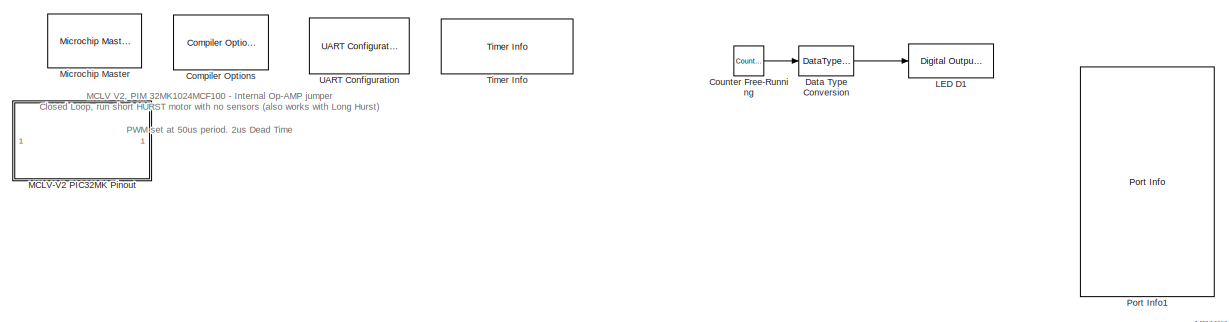
[diagram: root canvas - part 1/3, top left region]
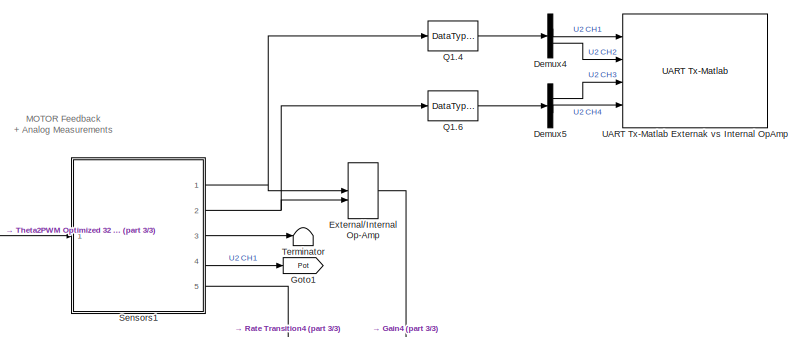
[diagram: root canvas - part 2/3, middle right region]
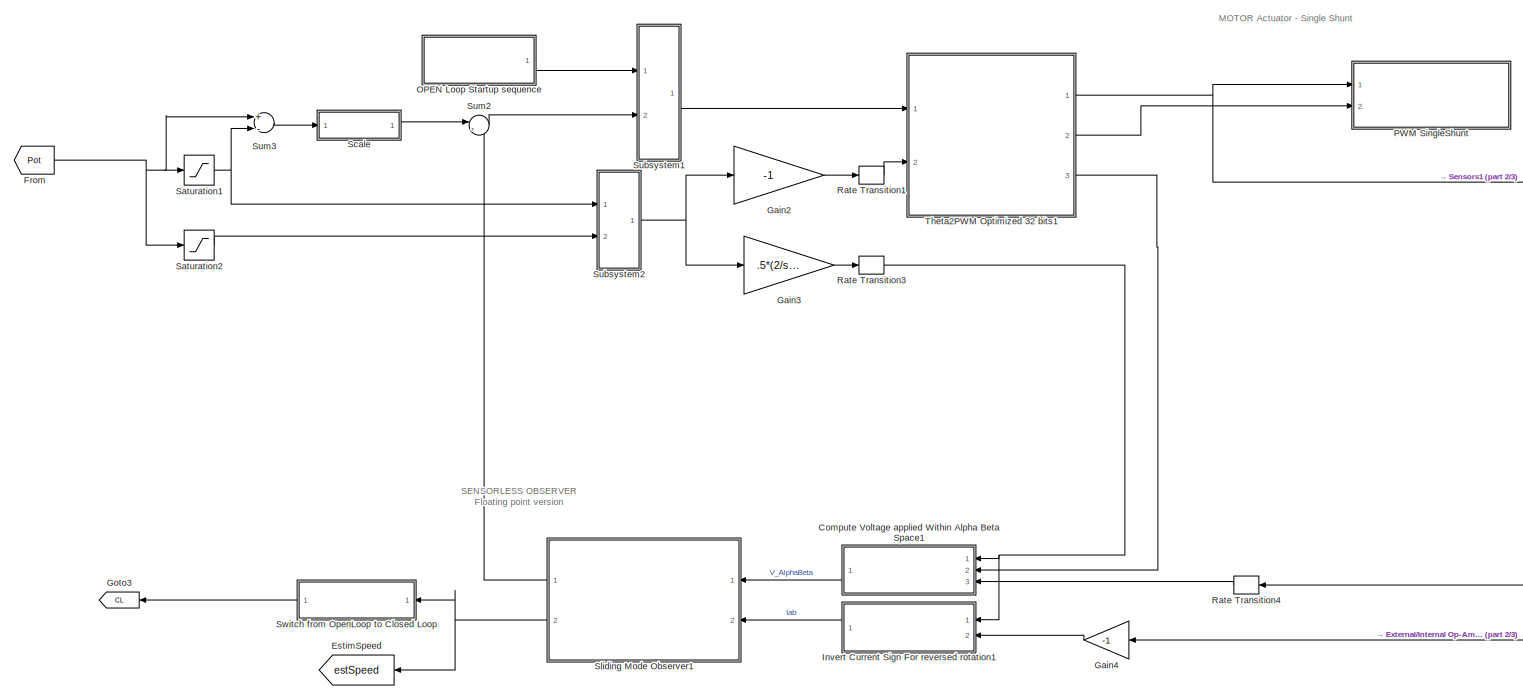
[diagram: root canvas - part 3/3, middle left region]
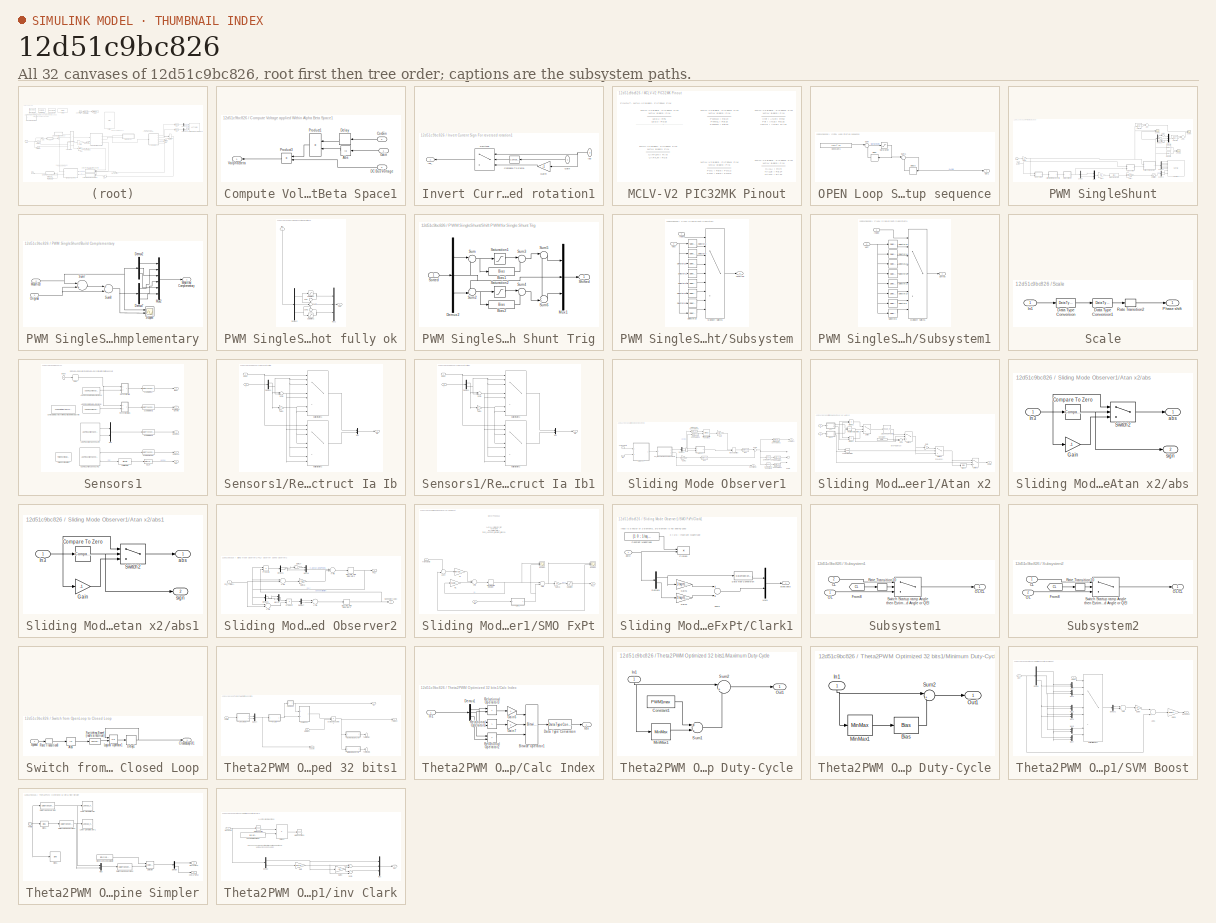
[diagram: thumbnail index - all 32 canvases of the model, root first then tree order]
MODEL slx_12d51c9bc826
KIND model
CONFIG AbsTol = auto
CONFIG FixedStep = 5e-5
CONFIG MaxStep = auto
CONFIG MinStep = auto
CONFIG RelTol = 1e-3
CONFIG SampleTimeConstraint = Unconstrained
CONFIG Solver = FixedStepDiscrete
CONFIG SolverMode = Auto
CONFIG SolverName = FixedStepDiscrete
CONFIG StartTime = 0.0
CONFIG StopTime = 1
BLOCK [Reference] Compiler Options  REF=MCHP_Blockset/System Configuration/Compiler Options
  Ports = []
  Priority = 1
  SourceBlock = MCHP_Blockset/System Configuration/Compiler Options
BLOCK [SubSystem] Compute Voltage applied Within Alpha Beta Space1
  Ports = [3, 1]
  RequestExecContextInheritance = off
  Variant = off
BLOCK [Abs] Compute Voltage applied Within Alpha Beta Space1/Abs
  SaturateOnIntegerOverflow = off
BLOCK [Inport] Compute Voltage applied Within Alpha Beta Space1/CosSin
  IconDisplay = Port number
  Port = 2
BLOCK [Inport] Compute Voltage applied Within Alpha Beta Space1/DC Bus Voltage
  IconDisplay = Port number
  Port = 3
BLOCK [Delay] Compute Voltage applied Within Alpha Beta Space1/Delay
  DelayLength = 1
  InitialCondition = 0
  InputPortMap = u0
  Ports = [1, 1]
BLOCK [Inport] Compute Voltage applied Within Alpha Beta Space1/Gain
  IconDisplay = Port number
BLOCK [Product] Compute Voltage applied Within Alpha Beta Space1/Product1
  InputSameDT = off
  Ports = [2, 1]
  SaturateOnIntegerOverflow = off
BLOCK [Product] Compute Voltage applied Within Alpha Beta Space1/Product3
  InputSameDT = off
  OutMax = [24]
  OutMin = [-24]
  Ports = [2, 1]
  SaturateOnIntegerOverflow = off
BLOCK [Outport] Compute Voltage applied Within Alpha Beta Space1/ValphaBeta
  IconDisplay = Port number
BLOCK [Reference] Counter Free-Running  REF=simulink/Sources/Counter
Free-Running
  Ports = [0, 1]
  SourceBlock = simulink/Sources/Counter\nFree-Running
  SourceType = Counter Free-Running
BLOCK [DataTypeConversion] Data Type Conversion
  RndMeth = Floor
  SaturateOnIntegerOverflow = off
BLOCK [Demux] Demux4
  DisplayOption = bar
  Outputs = 2
  Ports = [1, 2]
BLOCK [Demux] Demux5
  DisplayOption = bar
  Outputs = 2
  Ports = [1, 2]
BLOCK [Goto] EstimSpeed
  GotoTag = estSpeed
BLOCK [ManualSwitch] External//Internal Op-Amp 
  CurrentSetting = 0
BLOCK [From] From
  GotoTag = Pot
  TagVisibility = global
BLOCK [Gain] Gain2
  Gain = -1
  OutDataTypeStr = double
  OutMax = PWM1max*0.5
  OutMin = -PWM1max*0.5
  ParamDataTypeStr = Inherit: Inherit via internal rule
  RndMeth = Zero
  SaturateOnIntegerOverflow = off
BLOCK [Gain] Gain3
  Gain = .5*(2/sqrt(3))
  OutDataTypeStr = double
  ParamDataTypeStr = Inherit: Inherit via internal rule
  RndMeth = Zero
  SaturateOnIntegerOverflow = off
BLOCK [Gain] Gain4
  Gain = -1
  OutDataTypeStr = double
  OutMax = PWM1max*0.5
  OutMin = -PWM1max*0.5
  ParamDataTypeStr = Inherit: Inherit via internal rule
  RndMeth = Zero
  SaturateOnIntegerOverflow = off
BLOCK [Goto] Goto1
  GotoTag = Pot
  TagVisibility = global
BLOCK [Goto] Goto3
  GotoTag = CL
  TagVisibility = global
BLOCK [SubSystem] Invert Current Sign For reversed rotation1
  Ports = [2, 1]
  RequestExecContextInheritance = off
  Variant = off
BLOCK [Reference] Invert Current Sign For reversed rotation1/Compare To Zero1  REF=simulink/Logic and Bit
Operations/Compare
To Zero
  Ports = [1, 1]
  SourceBlock = simulink/Logic and Bit\nOperations/Compare\nTo Zero
  SourceType = Compare To Zero
BLOCK [Inport] Invert Current Sign For reversed rotation1/Gain
  IconDisplay = Port number
BLOCK [Gain] Invert Current Sign For reversed rotation1/Gain4
  Gain = -1
  ParamDataTypeStr = Inherit: Inherit via internal rule
  RndMeth = Zero
BLOCK [Inport] Invert Current Sign For reversed rotation1/Iab 
  IconDisplay = Port number
  Port = 2
BLOCK [Outport] Invert Current Sign For reversed rotation1/Iab_ 
  IconDisplay = Port number
BLOCK [Switch] Invert Current Sign For reversed rotation1/Switch3
  Criteria = u2 ~= 0
  InputSameDT = off
  SaturateOnIntegerOverflow = off
  Threshold = 250
BLOCK [Reference] LED D1  REF=MCHP_Blockset/Digital IO/Digital Output
Write
  Ports = [1]
  SourceBlock = MCHP_Blockset/Digital IO/Digital Output\nWrite
  SourceType = Output driver for Digital Output Pins
BLOCK [SubSystem] MCLV-V2 PIC32MK Pinout
  Ports = []
  RequestExecContextInheritance = off
  Variant = off
BLOCK [Reference] Microchip Master  REF=MCHP_Blockset/System Configuration/Microchip Master
  Ports = []
  SourceBlock = MCHP_Blockset/System Configuration/Microchip Master
BLOCK [SubSystem] OPEN Loop Startup sequence
  Ports = [0, 1]
  RequestExecContextInheritance = off
  Variant = off
BLOCK [Constant] OPEN Loop Startup sequence/Constant1
  OutDataTypeStr = fixdt(0,32,32)
  SampleTime = .00005
  Value = 149*2^-32
BLOCK [Delay] OPEN Loop Startup sequence/Delay
  DelayLength = 1
  InitialCondition = 0
  InputPortMap = u0
  Ports = [1, 1]
BLOCK [Delay] OPEN Loop Startup sequence/Delay2
  DelayLength = 1
  InitialCondition = 0
  InputPortMap = u0
  Ports = [1, 1]
BLOCK [Outport] OPEN Loop Startup sequence/Out1
  IconDisplay = Port number
BLOCK [Saturate] OPEN Loop Startup sequence/Saturation
  InputPortMap = u0
  LowerLimit = 0
  Ports = [1, 1]
  UpperLimit = 149*2^-32*3/.00005
BLOCK [Sum] OPEN Loop Startup sequence/Sum
  AccumDataTypeStr = fixdt(0,32,32)
  IconShape = round
  InputSameDT = off
  Inputs = |++
  OutDataTypeStr = Inherit: Same as accumulator
  Ports = [2, 1]
  RndMeth = Simplest
  SaturateOnIntegerOverflow = off
BLOCK [Sum] OPEN Loop Startup sequence/Sum1
  AccumDataTypeStr = fixdt(0,32,32)
  IconShape = round
  InputSameDT = off
  Inputs = |++
  OutDataTypeStr = Inherit: Same as accumulator
  Ports = [2, 1]
  RndMeth = Simplest
  SaturateOnIntegerOverflow = off
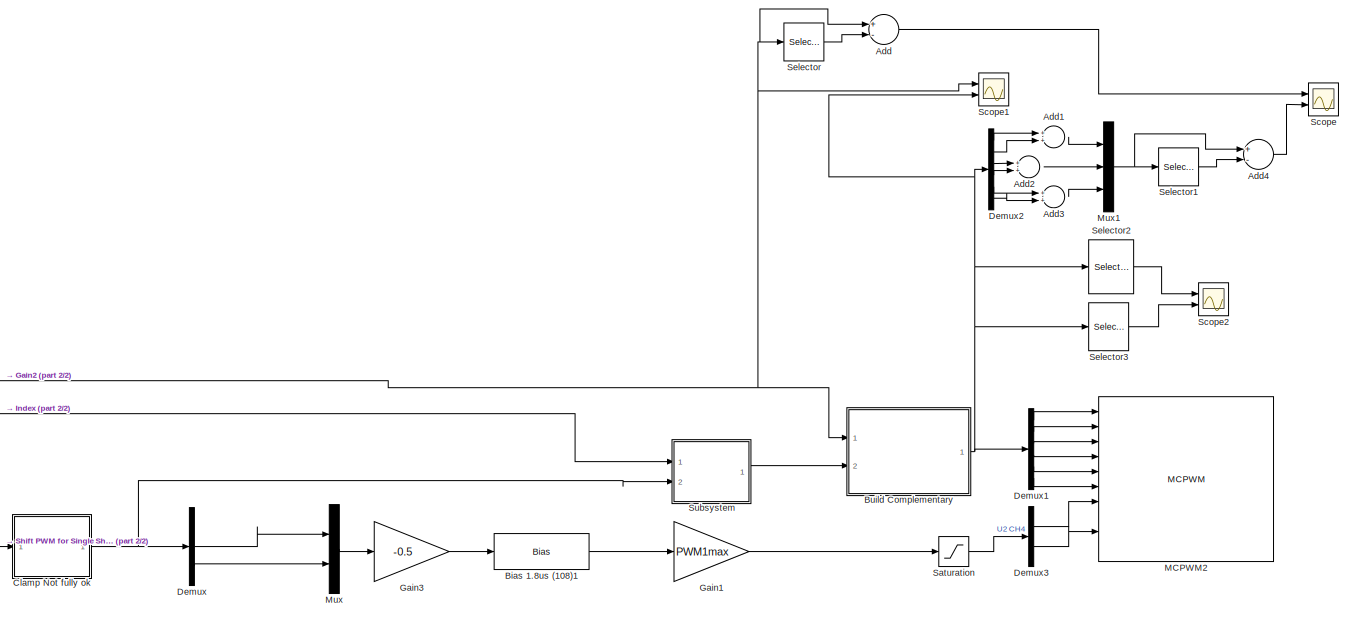
[diagram: PWM SingleShunt - part 1/2, center side, full height]
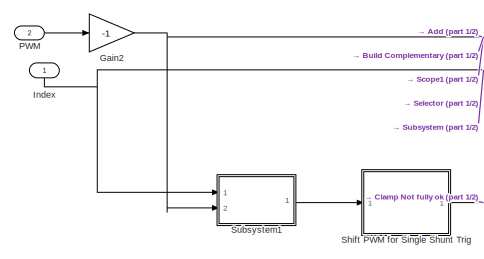
[diagram: PWM SingleShunt - part 2/2, bottom left region]
BLOCK [SubSystem] PWM SingleShunt
  Ports = [2]
  RequestExecContextInheritance = off
  Variant = off
BLOCK [Sum] PWM SingleShunt/Add
  InputSameDT = off
  Inputs = +-
  OutDataTypeStr = Inherit: Inherit via internal rule
  Ports = [2, 1]
  SaturateOnIntegerOverflow = off
BLOCK [Sum] PWM SingleShunt/Add1
  InputSameDT = off
  OutDataTypeStr = Inherit: Inherit via internal rule
  Ports = [2, 1]
  SaturateOnIntegerOverflow = off
BLOCK [Sum] PWM SingleShunt/Add2
  InputSameDT = off
  OutDataTypeStr = Inherit: Inherit via internal rule
  Ports = [2, 1]
  SaturateOnIntegerOverflow = off
BLOCK [Sum] PWM SingleShunt/Add3
  InputSameDT = off
  OutDataTypeStr = Inherit: Inherit via internal rule
  Ports = [2, 1]
  SaturateOnIntegerOverflow = off
BLOCK [Sum] PWM SingleShunt/Add4
  InputSameDT = off
  Inputs = +-
  OutDataTypeStr = Inherit: Inherit via internal rule
  Ports = [2, 1]
  SaturateOnIntegerOverflow = off
BLOCK [Bias] PWM SingleShunt/Bias 1.8us (108)1
  Bias = 0.5
  SaturateOnIntegerOverflow = off
BLOCK [SubSystem] PWM SingleShunt/Build Complementary
  Ports = [2, 1]
  RequestExecContextInheritance = off
  Variant = off
BLOCK [Demux] PWM SingleShunt/Build Complementary/Demux2
  DisplayOption = bar
  Outputs = 3
  Ports = [1, 3]
BLOCK [Demux] PWM SingleShunt/Build Complementary/Demux7
  DisplayOption = bar
  Outputs = 3
  Ports = [1, 3]
BLOCK [Inport] PWM SingleShunt/Build Complementary/Modified
  IconDisplay = Port number
  Port = 2
BLOCK [Outport] PWM SingleShunt/Build Complementary/Modified Complementary
  IconDisplay = Port number
BLOCK [Mux] PWM SingleShunt/Build Complementary/Mux2
  DisplayOption = bar
  Inputs = 6
  Ports = [6, 1]
BLOCK [Inport] PWM SingleShunt/Build Complementary/Original
  IconDisplay = Port number
BLOCK [Scope] PWM SingleShunt/Build Complementary/Scope6
  NumInputPorts = 2
  Ports = [2]
  ScopeSpecificationString = C++SS(StrPVP('Open','off'),StrPVP('TimeRange','auto'),StrPVP('TickLabels','OneTimeTick'),StrPVP('ShowLegends','off'),StrPVP('LimitDataPoints','off'),StrPVP('MaxDataPoints','5000'),StrPVP('SaveToWorkspace','off'),StrPVP('SaveName','ScopeData1'),StrPVP('YMin','-1.15672~-5'),StrPVP('YMax','1.1595~5'),StrPVP('BlockParamSampleInput','off'),StrPVP('BlockParamSampleTime','-1'),StrPVP('ZoomMode','on'),Str...<+663ch>
BLOCK [Sum] PWM SingleShunt/Build Complementary/Sum7
  InputSameDT = off
  Inputs = -+
  OutDataTypeStr = Inherit: Inherit via internal rule
  Ports = [2, 1]
  SaturateOnIntegerOverflow = off
BLOCK [Sum] PWM SingleShunt/Build Complementary/Sum8
  InputSameDT = off
  OutDataTypeStr = Inherit: Inherit via internal rule
  Ports = [2, 1]
  SaturateOnIntegerOverflow = off
BLOCK [SubSystem] PWM SingleShunt/Clamp Not fully ok
  Ports = [1, 1]
  RequestExecContextInheritance = off
  Variant = off
BLOCK [Demux] PWM SingleShunt/Clamp Not fully ok/Demux2
  DisplayOption = bar
  Outputs = 3
  Ports = [1, 3]
BLOCK [Inport] PWM SingleShunt/Clamp Not fully ok/In1
  IconDisplay = Port number
BLOCK [Mux] PWM SingleShunt/Clamp Not fully ok/Mux1
  DisplayOption = bar
  Inputs = 3
  Ports = [3, 1]
BLOCK [Outport] PWM SingleShunt/Clamp Not fully ok/Out1
  IconDisplay = Port number
BLOCK [Saturate] PWM SingleShunt/Clamp Not fully ok/Saturation1
  InputPortMap = u0
  LowerLimit = -inf
  Ports = [1, 1]
  UpperLimit = 1
BLOCK [Saturate] PWM SingleShunt/Clamp Not fully ok/Saturation2
  InputPortMap = u0
  LowerLimit = -1
  Ports = [1, 1]
  UpperLimit = inf
BLOCK [Sum] PWM SingleShunt/Clamp Not fully ok/Sum
  IconShape = round
  InputSameDT = off
  Inputs = +-
  OutDataTypeStr = Inherit: Inherit via internal rule
  Ports = [2, 1]
  SaturateOnIntegerOverflow = off
BLOCK [Sum] PWM SingleShunt/Clamp Not fully ok/Sum1
  IconShape = round
  InputSameDT = off
  Inputs = +-
  OutDataTypeStr = Inherit: Inherit via internal rule
  Ports = [2, 1]
  SaturateOnIntegerOverflow = off
BLOCK [Sum] PWM SingleShunt/Clamp Not fully ok/Sum2
  IconShape = round
  InputSameDT = off
  Inputs = -+-
  OutDataTypeStr = Inherit: Inherit via internal rule
  Ports = [3, 1]
  SaturateOnIntegerOverflow = off
BLOCK [Demux] PWM SingleShunt/Demux
  DisplayOption = bar
  Outputs = 3
  Ports = [1, 3]
BLOCK [Demux] PWM SingleShunt/Demux1
  DisplayOption = bar
  Outputs = 6
  Ports = [1, 6]
BLOCK [Demux] PWM SingleShunt/Demux2
  DisplayOption = bar
  Outputs = 6
  Ports = [1, 6]
BLOCK [Demux] PWM SingleShunt/Demux3
  DisplayOption = bar
  Outputs = 2
  Ports = [1, 2]
BLOCK [Gain] PWM SingleShunt/Gain1
  Gain = PWM1max
  OutDataTypeStr = uint32
  ParamDataTypeStr = Inherit: Inherit via internal rule
  RndMeth = Zero
  SaturateOnIntegerOverflow = off
BLOCK [Gain] PWM SingleShunt/Gain2
  Gain = -1
  OutDataTypeStr = double
  OutMax = PWM1max*0.5
  OutMin = -PWM1max*0.5
  ParamDataTypeStr = Inherit: Inherit via internal rule
  RndMeth = Zero
  SaturateOnIntegerOverflow = off
BLOCK [Gain] PWM SingleShunt/Gain3
  Gain = -0.5
  OutDataTypeStr = Inherit: Inherit via internal rule
  ParamDataTypeStr = Inherit: Inherit via internal rule
  SaturateOnIntegerOverflow = off
BLOCK [Inport] PWM SingleShunt/Index
  IconDisplay = Port number
BLOCK [Reference] PWM SingleShunt/MCPWM2  REF=MCHP_Blockset/PWM IO/MCPWM
  Ports = [10, 1]
  Priority = -2000
  SourceBlock = MCHP_Blockset/PWM IO/MCPWM
  SourceType = MCPWM PIC32 EF family
  UserDataPersistent = on
BLOCK [Mux] PWM SingleShunt/Mux
  DisplayOption = bar
  Inputs = 2
  Ports = [2, 1]
BLOCK [Mux] PWM SingleShunt/Mux1
  DisplayOption = bar
  Inputs = 3
  Ports = [3, 1]
BLOCK [Inport] PWM SingleShunt/PWM
  IconDisplay = Port number
  Port = 2
BLOCK [Saturate] PWM SingleShunt/Saturation
  InputPortMap = u0
  LowerLimit = 0
  Ports = [1, 1]
  UpperLimit = PWM1max*2-2
BLOCK [Scope] PWM SingleShunt/Scope
  NumInputPorts = 2
  Ports = [2]
  ScopeSpecificationString = C++SS(StrPVP('Open','off'),StrPVP('TimeRange','auto'),StrPVP('TickLabels','OneTimeTick'),StrPVP('ShowLegends','off'),StrPVP('LimitDataPoints','off'),StrPVP('MaxDataPoints','5000'),StrPVP('SaveToWorkspace','off'),StrPVP('SaveName','ScopeData1'),StrPVP('YMin','-0.63004~-1.26007'),StrPVP('YMax','0.63004~1.26007'),StrPVP('BlockParamSampleInput','off'),StrPVP('BlockParamSampleTime','-1'),StrPVP('ZoomMo...<+676ch>
BLOCK [Scope] PWM SingleShunt/Scope1
  NumInputPorts = 2
  Ports = [2]
  ScopeSpecificationString = C++SS(StrPVP('Open','off'),StrPVP('TimeRange','auto'),StrPVP('TickLabels','OneTimeTick'),StrPVP('ShowLegends','off'),StrPVP('LimitDataPoints','off'),StrPVP('MaxDataPoints','5000'),StrPVP('SaveToWorkspace','off'),StrPVP('SaveName','ScopeData1'),StrPVP('YMin','-0.31502~-0.67233'),StrPVP('YMax','0.31502~0.67233'),StrPVP('BlockParamSampleInput','off'),StrPVP('BlockParamSampleTime','-1'),StrPVP('ZoomMo...<+676ch>
BLOCK [Scope] PWM SingleShunt/Scope2
  NumInputPorts = 2
  Ports = [2]
  ScopeSpecificationString = C++SS(StrPVP('Open','off'),StrPVP('TimeRange','auto'),StrPVP('TickLabels','OneTimeTick'),StrPVP('ShowLegends','off'),StrPVP('LimitDataPoints','off'),StrPVP('MaxDataPoints','5000'),StrPVP('SaveToWorkspace','off'),StrPVP('SaveName','ScopeData1'),StrPVP('YMin','-0.67233~-0.67233'),StrPVP('YMax','0.67233~0.67233'),StrPVP('BlockParamSampleInput','off'),StrPVP('BlockParamSampleTime','-1'),StrPVP('ZoomMo...<+676ch>
BLOCK [Selector] PWM SingleShunt/Selector
  IndexOptions = Index vector (dialog)
  Indices = [2 3 1]
  InputPortWidth = 3
  OutputSizes = 1
  Ports = [1, 1]
BLOCK [Selector] PWM SingleShunt/Selector1
  IndexOptions = Index vector (dialog)
  Indices = [2 3 1]
  InputPortWidth = 3
  OutputSizes = 1
  Ports = [1, 1]
BLOCK [Selector] PWM SingleShunt/Selector2
  IndexOptions = Index vector (dialog)
  Indices = [1 3 5]
  InputPortWidth = 6
  OutputSizes = 1
  Ports = [1, 1]
BLOCK [Selector] PWM SingleShunt/Selector3
  IndexOptions = Index vector (dialog)
  Indices = [1 4 6]
  InputPortWidth = 6
  OutputSizes = 1
  Ports = [1, 1]
BLOCK [SubSystem] PWM SingleShunt/Shift PWM for Single Shunt Trig
  Ports = [1, 1]
  RequestExecContextInheritance = off
  Variant = off
BLOCK [Bias] PWM SingleShunt/Shift PWM for Single Shunt Trig/Bias1
  Bias = SafeTime*2
  SaturateOnIntegerOverflow = off
BLOCK [Bias] PWM SingleShunt/Shift PWM for Single Shunt Trig/Bias2
  Bias = SafeTime*2
  SaturateOnIntegerOverflow = off
BLOCK [Demux] PWM SingleShunt/Shift PWM for Single Shunt Trig/Demux2
  DisplayOption = bar
  Outputs = 3
  Ports = [1, 3]
BLOCK [Mux] PWM SingleShunt/Shift PWM for Single Shunt Trig/Mux1
  DisplayOption = bar
  Inputs = 3
  Ports = [3, 1]
BLOCK [Saturate] PWM SingleShunt/Shift PWM for Single Shunt Trig/Saturation1
  InputPortMap = u0
  LowerLimit = -inf
  Ports = [1, 1]
  UpperLimit = SafeTime*2
BLOCK [Saturate] PWM SingleShunt/Shift PWM for Single Shunt Trig/Saturation2
  InputPortMap = u0
  LowerLimit = -inf
  Ports = [1, 1]
  UpperLimit = SafeTime*2
BLOCK [Outport] PWM SingleShunt/Shift PWM for Single Shunt Trig/Shifted
  IconDisplay = Port number
BLOCK [Inport] PWM SingleShunt/Shift PWM for Single Shunt Trig/Sorted
  IconDisplay = Port number
BLOCK [Sum] PWM SingleShunt/Shift PWM for Single Shunt Trig/Sum
  IconShape = round
  InputSameDT = off
  Inputs = +-
  OutDataTypeStr = Inherit: Inherit via internal rule
  Ports = [2, 1]
  SaturateOnIntegerOverflow = off
BLOCK [Sum] PWM SingleShunt/Shift PWM for Single Shunt Trig/Sum2
  IconShape = round
  InputSameDT = off
  Inputs = +-
  OutDataTypeStr = Inherit: Inherit via internal rule
  Ports = [2, 1]
  SaturateOnIntegerOverflow = off
BLOCK [Sum] PWM SingleShunt/Shift PWM for Single Shunt Trig/Sum3
  IconShape = round
  InputSameDT = off
  Inputs = |+-
  OutDataTypeStr = Inherit: Inherit via internal rule
  Ports = [2, 1]
  SaturateOnIntegerOverflow = off
BLOCK [Sum] PWM SingleShunt/Shift PWM for Single Shunt Trig/Sum4
  IconShape = round
  InputSameDT = off
  Inputs = |+-
  OutDataTypeStr = Inherit: Inherit via internal rule
  Ports = [2, 1]
  SaturateOnIntegerOverflow = off
BLOCK [Sum] PWM SingleShunt/Shift PWM for Single Shunt Trig/Sum5
  IconShape = round
  InputSameDT = off
  Inputs = |-+
  OutDataTypeStr = Inherit: Inherit via internal rule
  Ports = [2, 1]
  SaturateOnIntegerOverflow = off
BLOCK [Sum] PWM SingleShunt/Shift PWM for Single Shunt Trig/Sum6
  IconShape = round
  InputSameDT = off
  Inputs = ++|
  OutDataTypeStr = Inherit: Inherit via internal rule
  Ports = [2, 1]
  SaturateOnIntegerOverflow = off
BLOCK [SubSystem] PWM SingleShunt/Subsystem
  Ports = [2, 1]
  RequestExecContextInheritance = off
  Variant = off
BLOCK [Inport] PWM SingleShunt/Subsystem/Index
  IconDisplay = Port number
BLOCK [MultiPortSwitch] PWM SingleShunt/Subsystem/Multiport Switch1
  DataPortOrder = Zero-based contiguous
  DiagnosticForDefault = None
  InputSameDT = off
  Inputs = 8
  Ports = [9, 1]
  SaturateOnIntegerOverflow = off
BLOCK [Selector] PWM SingleShunt/Subsystem/Selector10
  IndexOptions = Index vector (dialog)
  Indices = [1 2 3]
  InputPortWidth = 3
  OutputSizes = 1
  Ports = [1, 1]
BLOCK [Selector] PWM SingleShunt/Subsystem/Selector11
  IndexOptions = Index vector (dialog)
  Indices = [2 1 3]
  InputPortWidth = 3
  OutputSizes = 1
  Ports = [1, 1]
BLOCK [Selector] PWM SingleShunt/Subsystem/Selector12
  IndexOptions = Index vector (dialog)
  Indices = [2 3 1]
  InputPortWidth = 3
  OutputSizes = 1
  Ports = [1, 1]
BLOCK [Selector] PWM SingleShunt/Subsystem/Selector13
  IndexOptions = Index vector (dialog)
  Indices = [1 2 3]
  InputPortWidth = 3
  OutputSizes = 1
  Ports = [1, 1]
BLOCK [Selector] PWM SingleShunt/Subsystem/Selector14
  IndexOptions = Index vector (dialog)
  Indices = [1 3 2]
  InputPortWidth = 3
  OutputSizes = 1
  Ports = [1, 1]
BLOCK [Selector] PWM SingleShunt/Subsystem/Selector15
  IndexOptions = Index vector (dialog)
  Indices = [1 2 3]
  InputPortWidth = 3
  OutputSizes = 1
  Ports = [1, 1]
BLOCK [Selector] PWM SingleShunt/Subsystem/Selector8
  IndexOptions = Index vector (dialog)
  Indices = [3 2 1]
  InputPortWidth = 3
  OutputSizes = 1
  Ports = [1, 1]
BLOCK [Selector] PWM SingleShunt/Subsystem/Selector9
  IndexOptions = Index vector (dialog)
  Indices = [3 1 2]
  InputPortWidth = 3
  OutputSizes = 1
  Ports = [1, 1]
BLOCK [Outport] PWM SingleShunt/Subsystem/Unsorted
  IconDisplay = Port number
BLOCK [Inport] PWM SingleShunt/Subsystem/Vect
  IconDisplay = Port number
  Port = 2
BLOCK [SubSystem] PWM SingleShunt/Subsystem1
  Ports = [2, 1]
  RequestExecContextInheritance = off
  Variant = off
BLOCK [Inport] PWM SingleShunt/Subsystem1/Index
  IconDisplay = Port number
BLOCK [MultiPortSwitch] PWM SingleShunt/Subsystem1/Multiport Switch1
  DataPortOrder = Zero-based contiguous
  DiagnosticForDefault = None
  InputSameDT = off
  Inputs = 8
  Ports = [9, 1]
  SaturateOnIntegerOverflow = off
BLOCK [Selector] PWM SingleShunt/Subsystem1/Selector10
  IndexOptions = Index vector (dialog)
  Indices = [1 2 3]
  InputPortWidth = 3
  OutputSizes = 1
  Ports = [1, 1]
BLOCK [Selector] PWM SingleShunt/Subsystem1/Selector11
  IndexOptions = Index vector (dialog)
  Indices = [3 1 2]
  InputPortWidth = 3
  OutputSizes = 1
  Ports = [1, 1]
BLOCK [Selector] PWM SingleShunt/Subsystem1/Selector12
  IndexOptions = Index vector (dialog)
  Indices = [2 1 3]
  InputPortWidth = 3
  OutputSizes = 1
  Ports = [1, 1]
BLOCK [Selector] PWM SingleShunt/Subsystem1/Selector13
  IndexOptions = Index vector (dialog)
  Indices = [1 2 3]
  InputPortWidth = 3
  OutputSizes = 1
  Ports = [1, 1]
BLOCK [Selector] PWM SingleShunt/Subsystem1/Selector14
  IndexOptions = Index vector (dialog)
  Indices = [2 3 1]
  InputPortWidth = 3
  OutputSizes = 1
  Ports = [1, 1]
BLOCK [Selector] PWM SingleShunt/Subsystem1/Selector15
  IndexOptions = Index vector (dialog)
  Indices = [3 2 1]
  InputPortWidth = 3
  OutputSizes = 1
  Ports = [1, 1]
BLOCK [Selector] PWM SingleShunt/Subsystem1/Selector8
  IndexOptions = Index vector (dialog)
  Indices = [1 2 3]
  InputPortWidth = 3
  OutputSizes = 1
  Ports = [1, 1]
BLOCK [Selector] PWM SingleShunt/Subsystem1/Selector9
  IndexOptions = Index vector (dialog)
  Indices = [1 3 2]
  InputPortWidth = 3
  OutputSizes = 1
  Ports = [1, 1]
BLOCK [Outport] PWM SingleShunt/Subsystem1/Sorted
  IconDisplay = Port number
BLOCK [Inport] PWM SingleShunt/Subsystem1/Vect
  IconDisplay = Port number
  Port = 2
BLOCK [Reference] Port Info1  REF=MCHP_Blockset/System Info/Port Info
  Ports = []
  SourceBlock = MCHP_Blockset/System Info/Port Info
BLOCK [DataTypeConversion] Q1.4
  ConvertRealWorld = Stored Integer (SI)
  OutDataTypeStr = int16
  RndMeth = Floor
  SaturateOnIntegerOverflow = off
BLOCK [DataTypeConversion] Q1.6
  ConvertRealWorld = Stored Integer (SI)
  OutDataTypeStr = int16
  RndMeth = Floor
  SaturateOnIntegerOverflow = off
BLOCK [RateTransition] Rate Transition1
BLOCK [RateTransition] Rate Transition3
BLOCK [RateTransition] Rate Transition4
  Deterministic = off
BLOCK [Saturate] Saturation1
  InputPortMap = u0
  LowerLimit = -sqrt(3)/2 * (49/50)
  Ports = [1, 1]
  UpperLimit = sqrt(3)/2 * (49/50)
BLOCK [Saturate] Saturation2
  InputPortMap = u0
  LowerLimit = -0.84*.3
  Ports = [1, 1]
  UpperLimit = 0.84*.3
BLOCK [SubSystem] Scale
  Ports = [1, 1]
  RequestExecContextInheritance = off
  Variant = off
BLOCK [DataTypeConversion] Scale/Data Type Conversion
  OutDataTypeStr = fixdt(1,32,31)
  RndMeth = Floor
  SaturateOnIntegerOverflow = off
BLOCK [DataTypeConversion] Scale/Data Type Conversion1
  ConvertRealWorld = Stored Integer (SI)
  OutDataTypeStr = fixdt(0,32,32)
  RndMeth = Floor
  SaturateOnIntegerOverflow = off
BLOCK [Inport] Scale/In1
  IconDisplay = Port number
BLOCK [Outport] Scale/Phase shift
  IconDisplay = Port number
BLOCK [RateTransition] Scale/Rate Transition2
BLOCK [SubSystem] Sensors1
  Ports = [1, 5]
  RequestExecContextInheritance = off
  Variant = off
BLOCK [Reference] Sensors1/ADC PIC32 External Op-Amp signal   REF=MCHP_Blockset/Analog IO/ADC PIC32
High Speed SAR
  Ports = [0, 1]
  Priority = -5000
  SourceBlock = MCHP_Blockset/Analog IO/ADC PIC32\nHigh Speed SAR
  SourceType = ADC PIC32 EF family
BLOCK [Reference] Sensors1/ADC PIC32 High Speed SAR2  REF=MCHP_Blockset/Analog IO/ADC PIC32
High Speed SAR
  Ports = [0, 2]
  Priority = -5000
  SourceBlock = MCHP_Blockset/Analog IO/ADC PIC32\nHigh Speed SAR
  SourceType = ADC PIC32 EF family
BLOCK [Reference] Sensors1/ADC PIC32 High Speed SAR3  REF=MCHP_Blockset/Analog IO/ADC PIC32
High Speed SAR
  Ports = [0, 2]
  Priority = -5000
  SourceBlock = MCHP_Blockset/Analog IO/ADC PIC32\nHigh Speed SAR
  SourceType = ADC PIC32 EF family
BLOCK [Reference] Sensors1/ADC PIC32 Internal OpAmp signal  REF=MCHP_Blockset/Analog IO/ADC PIC32
High Speed SAR
  Ports = [0, 1]
  Priority = -5000
  SourceBlock = MCHP_Blockset/Analog IO/ADC PIC32\nHigh Speed SAR
  SourceType = ADC PIC32 EF family
BLOCK [Reference] Sensors1/Comparator - OpAmps - Volt Ref Configure Internal OpAmp  REF=MCHP_Blockset/Analog IO/Comparator - OpAmps - Volt Ref
  Ports = []
  SourceBlock = MCHP_Blockset/Analog IO/Comparator - OpAmps - Volt Ref
  SourceType = Comparator / Op amp (DS70357 & DS70648)
BLOCK [Outport] Sensors1/DC Bus (V)
  IconDisplay = Port number
  Port = 5
BLOCK [Delay] Sensors1/Delay
  DelayLength = 1
  InitialCondition = 0
  InputPortMap = u0
  Ports = [1, 1]
BLOCK [Outport] Sensors1/Iab (A)
  IconDisplay = Port number
BLOCK [Outport] Sensors1/Iab (A) Internal OpAmp
  IconDisplay = Port number
  Port = 2
BLOCK [Outport] Sensors1/Iab (A) dual
  IconDisplay = Port number
  Port = 3
BLOCK [Inport] Sensors1/Index
  IconDisplay = Port number
BLOCK [Mux] Sensors1/Mux
  DisplayOption = bar
  Inputs = 2
  Ports = [2, 1]
BLOCK [Outport] Sensors1/Pot
  IconDisplay = Port number
  Port = 4
BLOCK [DataTypeConversion] Sensors1/Q1.15
  ConvertRealWorld = Stored Integer (SI)
  OutDataTypeStr = fixdt(1,16,15)
  RndMeth = Floor
  SaturateOnIntegerOverflow = off
BLOCK [SubSystem] Sensors1/Reconstruct Ia Ib
  AncestorBlock = Lib_MCHP_BLKDEMO_Motor/MOTOR/SINGLE SHUNT\nCenter Aligned/MOTOR - Board\nSensor/Reconstruct\nIa Ib
  Ports = [2, 1]
  RequestExecContextInheritance = off
  Variant = off
BLOCK [Demux] Sensors1/Reconstruct Ia Ib/Demux1
  DisplayOption = bar
  Outputs = 2
  Ports = [1, 2]
BLOCK [Gain] Sensors1/Reconstruct Ia Ib/Gain1
  Gain = -1
  ParamDataTypeStr = Inherit: Inherit via internal rule
  SaturateOnIntegerOverflow = off
BLOCK [Inport] Sensors1/Reconstruct Ia Ib/I
  IconDisplay = Port number
  Port = 2
BLOCK [Outport] Sensors1/Reconstruct Ia Ib/Ia Ib
  IconDisplay = Port number
BLOCK [Inport] Sensors1/Reconstruct Ia Ib/Index
  IconDisplay = Port number
BLOCK [MultiPortSwitch] Sensors1/Reconstruct Ia Ib/Multiport Switch1
  DataPortOrder = Zero-based contiguous
  DiagnosticForDefault = None
  InputSameDT = off
  Inputs = 8
  Ports = [9, 1]
  SaturateOnIntegerOverflow = off
BLOCK [MultiPortSwitch] Sensors1/Reconstruct Ia Ib/Multiport Switch2
  DataPortOrder = Zero-based contiguous
  DiagnosticForDefault = None
  InputSameDT = off
  Inputs = 8
  Ports = [9, 1]
  SaturateOnIntegerOverflow = off
BLOCK [Mux] Sensors1/Reconstruct Ia Ib/Mux
  DisplayOption = bar
  Inputs = 2
  Ports = [2, 1]
BLOCK [Sum] Sensors1/Reconstruct Ia Ib/Sum1
  InputSameDT = off
  Inputs = +-
  OutDataTypeStr = Inherit: Inherit via internal rule
  Ports = [2, 1]
  SaturateOnIntegerOverflow = off
BLOCK [SubSystem] Sensors1/Reconstruct Ia Ib1
  AncestorBlock = Lib_MCHP_BLKDEMO_Motor/MOTOR/SINGLE SHUNT\nCenter Aligned/MOTOR - Board\nSensor/Reconstruct\nIa Ib
  Ports = [2, 1]
  RequestExecContextInheritance = off
  Variant = off
BLOCK [Demux] Sensors1/Reconstruct Ia Ib1/Demux1
  DisplayOption = bar
  Outputs = 2
  Ports = [1, 2]
BLOCK [Gain] Sensors1/Reconstruct Ia Ib1/Gain1
  Gain = -1
  ParamDataTypeStr = Inherit: Inherit via internal rule
  SaturateOnIntegerOverflow = off
BLOCK [Inport] Sensors1/Reconstruct Ia Ib1/I
  IconDisplay = Port number
  Port = 2
BLOCK [Outport] Sensors1/Reconstruct Ia Ib1/Ia Ib
  IconDisplay = Port number
BLOCK [Inport] Sensors1/Reconstruct Ia Ib1/Index
  IconDisplay = Port number
BLOCK [MultiPortSwitch] Sensors1/Reconstruct Ia Ib1/Multiport Switch1
  DataPortOrder = Zero-based contiguous
  DiagnosticForDefault = None
  InputSameDT = off
  Inputs = 8
  Ports = [9, 1]
  SaturateOnIntegerOverflow = off
BLOCK [MultiPortSwitch] Sensors1/Reconstruct Ia Ib1/Multiport Switch2
  DataPortOrder = Zero-based contiguous
  DiagnosticForDefault = None
  InputSameDT = off
  Inputs = 8
  Ports = [9, 1]
  SaturateOnIntegerOverflow = off
BLOCK [Mux] Sensors1/Reconstruct Ia Ib1/Mux
  DisplayOption = bar
  Inputs = 2
  Ports = [2, 1]
BLOCK [Sum] Sensors1/Reconstruct Ia Ib1/Sum1
  InputSameDT = off
  Inputs = +-
  OutDataTypeStr = Inherit: Inherit via internal rule
  Ports = [2, 1]
  SaturateOnIntegerOverflow = off
BLOCK [DataTypeConversion] Sensors1/Scale DC BUS  (V)
  ConvertRealWorld = Stored Integer (SI)
  OutDataTypeStr = fixdt(0,16, (3.3*16)/65535 ,0)
  RndMeth = Floor
  SaturateOnIntegerOverflow = off
BLOCK [DataTypeConversion] Sensors1/Scale Ia Ib to (A)
  ConvertRealWorld = Stored Integer (SI)
  OutDataTypeStr = fixdt(1,16, 1.65/32768 / (.005 * 75),0)
  RndMeth = Floor
  SaturateOnIntegerOverflow = off
BLOCK [DataTypeConversion] Sensors1/Scale Ia Ib to (A)1
  ConvertRealWorld = Stored Integer (SI)
  OutDataTypeStr = fixdt(1,16, 1.65/32768 / (.005 * 75),0)
  RndMeth = Floor
  SaturateOnIntegerOverflow = off
BLOCK [DataTypeConversion] Sensors1/Scale Ia Ib to (A)2
  ConvertRealWorld = Stored Integer (SI)
  OutDataTypeStr = fixdt(1,16, 1.65/32768 / (.005 * 75),0)
  RndMeth = Floor
  SaturateOnIntegerOverflow = off
BLOCK [ArithShift] Sensors1/Shift Arithmetic
  BitShiftDirection = Right
  BitShiftNumber = 1
  InputPortMap = u0
  Ports = [1, 1]
BLOCK [Reference] Sensors1/TIMER Configuration  REF=MCHP_Blockset/Timers/TIMER Configuration
  Ports = []
  SourceBlock = MCHP_Blockset/Timers/TIMER Configuration
  SourceType = Timer Configuration
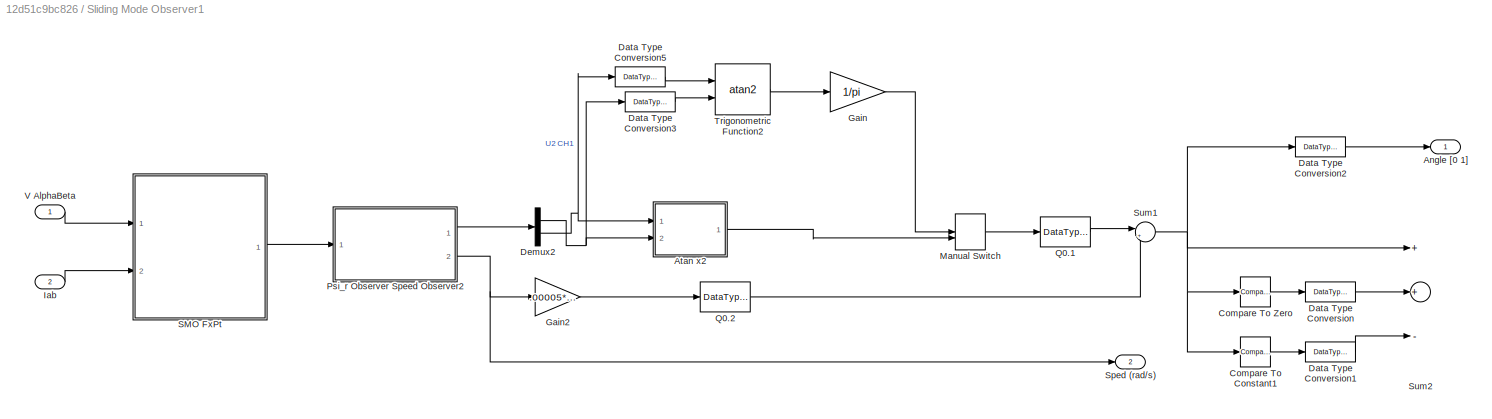
BLOCK [SubSystem] Sliding Mode Observer1
  Ports = [2, 2]
  RequestExecContextInheritance = off
  Variant = off
BLOCK [Outport] Sliding Mode Observer1/Angle [0 1]
  IconDisplay = Port number
BLOCK [SubSystem] Sliding Mode Observer1/Atan x2
  AncestorBlock = Lib_MCHP_BLKDEMO_Motor/Atan x2
  Ports = [2, 1]
  RequestExecContextInheritance = off
  Variant = off
BLOCK [Lookup_n-D] Sliding Mode Observer1/Atan x2/1-D Lookup Table
  BeginIndexSearchUsingPreviousIndexResult = on
  BreakpointsForDimension1 = [0:2^-8:1]
  BreakpointsForDimension1FirstPoint = 0
  BreakpointsForDimension1Spacing = 2^-8
  BreakpointsSpecification = Even spacing
  ExtrapMethod = Clip
  IndexSearchMethod = Evenly spaced points
  InterpMethod = Flat
  LockScale = on
  NumberOfTableDimensions = 1
  OutDataTypeStr = fixdt(1,32,31)
  Ports = [1, 1]
  RemoveProtectionInput = on
  RndMeth = Simplest
  Table = atan([0:2^-8:1])/(pi)
  TableDataTypeStr = fixdt(1,32,31)
  UseLastTableValue = on
BLOCK [Bias] Sliding Mode Observer1/Atan x2/Bias1
  Bias = 1
  SaturateOnIntegerOverflow = off
BLOCK [Constant] Sliding Mode Observer1/Atan x2/Constant
  OutDataTypeStr = Inherit: Inherit via back propagation
  Value = (pi/2) / (pi)
BLOCK [Product] Sliding Mode Observer1/Atan x2/Divide1
  InputSameDT = off
  Inputs = */
  OutDataTypeStr = fixdt(0,16,15)
  Ports = [2, 1]
  RndMeth = Floor
  SaturateOnIntegerOverflow = off
BLOCK [Product] Sliding Mode Observer1/Atan x2/Divide2
  InputSameDT = off
  Inputs = */
  OutDataTypeStr = fixdt(0,16,15)
  Ports = [2, 1]
  RndMeth = Floor
  SaturateOnIntegerOverflow = off
BLOCK [Gain] Sliding Mode Observer1/Atan x2/Gain
  Gain = -1
  ParamDataTypeStr = Inherit: Inherit via internal rule
  SaturateOnIntegerOverflow = off
BLOCK [Logic] Sliding Mode Observer1/Atan x2/Logical Operator
  AllPortsSameDT = off
  Operator = XOR
  OutDataTypeStr = boolean
  Ports = [2, 1]
BLOCK [RelationalOperator] Sliding Mode Observer1/Atan x2/Relational Operator
  InputSameDT = off
  Operator = <=
  OutDataTypeStr = boolean
  Ports = [2, 1]
BLOCK [Sum] Sliding Mode Observer1/Atan x2/Sum
  InputSameDT = off
  Inputs = +-
  OutDataTypeStr = Inherit: Inherit via internal rule
  Ports = [2, 1]
  SaturateOnIntegerOverflow = off
BLOCK [Switch] Sliding Mode Observer1/Atan x2/Switch
  Criteria = u2 ~= 0
  InputSameDT = off
  SaturateOnIntegerOverflow = off
BLOCK [Switch] Sliding Mode Observer1/Atan x2/Switch1
  Criteria = u2 ~= 0
  InputSameDT = off
  SaturateOnIntegerOverflow = off
BLOCK [Switch] Sliding Mode Observer1/Atan x2/Switch2
  Criteria = u2 ~= 0
  InputSameDT = off
  SaturateOnIntegerOverflow = off
BLOCK [Switch] Sliding Mode Observer1/Atan x2/Switch3
  Criteria = u2 ~= 0
  InputSameDT = off
  SaturateOnIntegerOverflow = off
BLOCK [SubSystem] Sliding Mode Observer1/Atan x2/abs
  Ports = [1, 2]
  RequestExecContextInheritance = off
  Variant = off
BLOCK [Reference] Sliding Mode Observer1/Atan x2/abs/Compare To Zero  REF=simulink/Logic and Bit
Operations/Compare
To Zero
  Ports = [1, 1]
  SourceBlock = simulink/Logic and Bit\nOperations/Compare\nTo Zero
  SourceType = Compare To Zero
BLOCK [Gain] Sliding Mode Observer1/Atan x2/abs/Gain
  Gain = -1
  ParamDataTypeStr = Inherit: Inherit via internal rule
  SaturateOnIntegerOverflow = off
BLOCK [Inport] Sliding Mode Observer1/Atan x2/abs/In3
  IconDisplay = Port number
BLOCK [Switch] Sliding Mode Observer1/Atan x2/abs/Switch2
  Criteria = u2 ~= 0
  InputSameDT = off
  SaturateOnIntegerOverflow = off
BLOCK [Outport] Sliding Mode Observer1/Atan x2/abs/abs
  IconDisplay = Port number
BLOCK [Outport] Sliding Mode Observer1/Atan x2/abs/sign
  IconDisplay = Port number
  Port = 2
BLOCK [SubSystem] Sliding Mode Observer1/Atan x2/abs1
  Ports = [1, 2]
  RequestExecContextInheritance = off
  Variant = off
BLOCK [Reference] Sliding Mode Observer1/Atan x2/abs1/Compare To Zero  REF=simulink/Logic and Bit
Operations/Compare
To Zero
  Ports = [1, 1]
  SourceBlock = simulink/Logic and Bit\nOperations/Compare\nTo Zero
  SourceType = Compare To Zero
BLOCK [Gain] Sliding Mode Observer1/Atan x2/abs1/Gain
  Gain = -1
  ParamDataTypeStr = Inherit: Inherit via internal rule
  SaturateOnIntegerOverflow = off
BLOCK [Inport] Sliding Mode Observer1/Atan x2/abs1/In3
  IconDisplay = Port number
BLOCK [Switch] Sliding Mode Observer1/Atan x2/abs1/Switch2
  Criteria = u2 ~= 0
  InputSameDT = off
  SaturateOnIntegerOverflow = off
BLOCK [Outport] Sliding Mode Observer1/Atan x2/abs1/abs
  IconDisplay = Port number
BLOCK [Outport] Sliding Mode Observer1/Atan x2/abs1/sign
  IconDisplay = Port number
  Port = 2
BLOCK [Outport] Sliding Mode Observer1/Atan x2/angle
  IconDisplay = Port number
BLOCK [Inport] Sliding Mode Observer1/Atan x2/x
  IconDisplay = Port number
BLOCK [Inport] Sliding Mode Observer1/Atan x2/y
  IconDisplay = Port number
  Port = 2
BLOCK [Reference] Sliding Mode Observer1/Compare To Constant1  REF=simulink/Logic and Bit
Operations/Compare
To Constant
  Ports = [1, 1]
  SourceBlock = simulink/Logic and Bit\nOperations/Compare\nTo Constant
  SourceType = Compare To Constant
BLOCK [Reference] Sliding Mode Observer1/Compare To Zero  REF=simulink/Logic and Bit
Operations/Compare
To Zero
  Ports = [1, 1]
  SourceBlock = simulink/Logic and Bit\nOperations/Compare\nTo Zero
  SourceType = Compare To Zero
BLOCK [DataTypeConversion] Sliding Mode Observer1/Data Type Conversion
  SaturateOnIntegerOverflow = off
BLOCK [DataTypeConversion] Sliding Mode Observer1/Data Type Conversion1
  SaturateOnIntegerOverflow = off
BLOCK [DataTypeConversion] Sliding Mode Observer1/Data Type Conversion2
  OutDataTypeStr = fixdt(0,32,32)
  SaturateOnIntegerOverflow = off
BLOCK [DataTypeConversion] Sliding Mode Observer1/Data Type Conversion3
  OutDataTypeStr = fixdt(1,16,10)
  SaturateOnIntegerOverflow = off
BLOCK [DataTypeConversion] Sliding Mode Observer1/Data Type Conversion5
  OutDataTypeStr = fixdt(1,16,10)
  SaturateOnIntegerOverflow = off
BLOCK [Demux] Sliding Mode Observer1/Demux2
  DisplayOption = bar
  Outputs = 2
  Ports = [1, 2]
BLOCK [Gain] Sliding Mode Observer1/Gain
  Gain = 1/pi
  OutDataTypeStr = fixdt(1,32,31)
  ParamDataTypeStr = Inherit: Inherit via internal rule
  RndMeth = Zero
  SaturateOnIntegerOverflow = off
BLOCK [Gain] Sliding Mode Observer1/Gain2
  Gain = .00005*inv(2*pi)*3
  OutDataTypeStr = fixdt(1,32,31)
  ParamDataTypeStr = Inherit: Inherit via internal rule
  RndMeth = Zero
  SaturateOnIntegerOverflow = off
BLOCK [Inport] Sliding Mode Observer1/Iab
  IconDisplay = Port number
  Port = 2
BLOCK [ManualSwitch] Sliding Mode Observer1/Manual Switch
  CurrentSetting = 0
BLOCK [SubSystem] Sliding Mode Observer1/Psi_r Observer Speed Observer2
  Ports = [1, 2]
  RequestExecContextInheritance = off
  Variant = off
BLOCK [Demux] Sliding Mode Observer1/Psi_r Observer Speed Observer2/Demux5
  DisplayOption = bar
  Outputs = 2
  Ports = [1, 2]
BLOCK [Demux] Sliding Mode Observer1/Psi_r Observer Speed Observer2/Demux6
  DisplayOption = bar
  Outputs = 2
  Ports = [1, 2]
BLOCK [Demux] Sliding Mode Observer1/Psi_r Observer Speed Observer2/Demux7
  DisplayOption = bar
  Outputs = 2
  Ports = [1, 2]
BLOCK [DiscreteIntegrator] Sliding Mode Observer1/Psi_r Observer Speed Observer2/Discrete-Time Integrator2
  ICPrevOutput = DiscIntNeverNeededParam
  ICPrevScaledInput = DiscIntNeverNeededParam
  LowerSaturationLimit = -15
  OutMax = 24
  OutMin = -24
  Ports = [1, 1]
  RndMeth = Zero
  SampleTime = -1
  UpperSaturationLimit = 15
  gainval = 1
BLOCK [DiscreteIntegrator] Sliding Mode Observer1/Psi_r Observer Speed Observer2/Discrete-Time Integrator3
  ICPrevOutput = DiscIntNeverNeededParam
  ICPrevScaledInput = DiscIntNeverNeededParam
  OutMax = 5300 * 5 * (2*pi) / 60
  OutMin = -5300 * 5 * (2*pi) / 60
  Ports = [1, 1]
  RndMeth = Zero
  SampleTime = -1
  StateIdentifier = Speed
  gainval = 1000
BLOCK [Gain] Sliding Mode Observer1/Psi_r Observer Speed Observer2/Gain16
  Gain = 128
  OutDataTypeStr = Inherit: Inherit via internal rule
  OutMax = [24*2*128]
  OutMin = [-24*2*128]
  ParamDataTypeStr = Inherit: Inherit via internal rule
  RndMeth = Zero
  SaturateOnIntegerOverflow = off
BLOCK [Gain] Sliding Mode Observer1/Psi_r Observer Speed Observer2/Gain17
  Gain = -1
  ParamDataTypeStr = Inherit: Inherit via internal rule
  SaturateOnIntegerOverflow = off
BLOCK [Mux] Sliding Mode Observer1/Psi_r Observer Speed Observer2/Mux18
  DisplayOption = bar
  Inputs = 2
  Ports = [2, 1]
BLOCK [Mux] Sliding Mode Observer1/Psi_r Observer Speed Observer2/Mux19
  DisplayOption = bar
  Inputs = 2
  Ports = [2, 1]
BLOCK [Product] Sliding Mode Observer1/Psi_r Observer Speed Observer2/Product6
  InputSameDT = off
  OutDataTypeStr = Inherit: Inherit via internal rule
  Ports = [2, 1]
  SaturateOnIntegerOverflow = off
BLOCK [Product] Sliding Mode Observer1/Psi_r Observer Speed Observer2/Product7
  InputSameDT = off
  OutDataTypeStr = Inherit: Inherit via internal rule
  OutMax = 24*24
  OutMin = [-24*24]
  Ports = [2, 1]
  SaturateOnIntegerOverflow = off
BLOCK [Outport] Sliding Mode Observer1/Psi_r Observer Speed Observer2/Psi_r
  IconDisplay = Port number
BLOCK [Inport] Sliding Mode Observer1/Psi_r Observer Speed Observer2/Psi_r (Noisy)
  IconDisplay = Port number
BLOCK [Outport] Sliding Mode Observer1/Psi_r Observer Speed Observer2/Speed we (rad//s)
  IconDisplay = Port number
  Port = 2
BLOCK [Sum] Sliding Mode Observer1/Psi_r Observer Speed Observer2/V - RI6
  AccumDataTypeStr = Inherit: Same as first input
  InputSameDT = off
  Inputs = +-
  OutDataTypeStr = Inherit: Same as accumulator
  Ports = [2, 1]
  RndMeth = Zero
  SaturateOnIntegerOverflow = off
BLOCK [Sum] Sliding Mode Observer1/Psi_r Observer Speed Observer2/V - RI7
  InputSameDT = off
  Inputs = +-
  OutDataTypeStr = Inherit: Inherit via internal rule
  OutMax = [24*2]
  OutMin = [-24*2]
  Ports = [2, 1]
  RndMeth = Zero
  SaturateOnIntegerOverflow = off
BLOCK [Sum] Sliding Mode Observer1/Psi_r Observer Speed Observer2/V - RI8
  AccumDataTypeStr = Inherit: Same as first input
  InputSameDT = off
  Inputs = +-
  OutDataTypeStr = Inherit: Same as accumulator
  Ports = [2, 1]
  RndMeth = Zero
  SaturateOnIntegerOverflow = off
BLOCK [Sum] Sliding Mode Observer1/Psi_r Observer Speed Observer2/V - RI9
  Inputs = +-
  OutDataTypeStr = Inherit: Inherit via internal rule
  OutMax = [-24*24*2]
  OutMin = [-24*24*2]
  Ports = [2, 1]
  RndMeth = Zero
  SaturateOnIntegerOverflow = off
BLOCK [DataTypeConversion] Sliding Mode Observer1/Q0.1
  ConvertRealWorld = Stored Integer (SI)
  OutDataTypeStr = fixdt(0,32,32)
  RndMeth = Simplest
  SaturateOnIntegerOverflow = off
BLOCK [DataTypeConversion] Sliding Mode Observer1/Q0.2
  ConvertRealWorld = Stored Integer (SI)
  OutDataTypeStr = fixdt(0,32,32)
  RndMeth = Simplest
  SaturateOnIntegerOverflow = off
BLOCK [SubSystem] Sliding Mode Observer1/SMO FxPt
  Ports = [2, 1]
  RequestExecContextInheritance = off
  Variant = off
BLOCK [Gain] Sliding Mode Observer1/SMO FxPt/1//L
  Gain = inv(.002)
  OutDataTypeStr = Inherit: Inherit via internal rule
  OutMax = [24] * inv(.002) *2
  OutMin = [-24] * inv(.002) *2
  ParamDataTypeStr = Inherit: Inherit via internal rule
  RndMeth = Zero
  SaturateOnIntegerOverflow = off
BLOCK [SubSystem] Sliding Mode Observer1/SMO FxPt/Clark1
  Ports = [1, 1]
  RequestExecContextInheritance = off
  Variant = off
BLOCK [Product] Sliding Mode Observer1/SMO FxPt/Clark1/Clarke1
  InputSameDT = off
  Multiplication = Matrix(*)
  OutDataTypeStr = fixdt(1,16)
  OutMax = [4.4]
  OutMin = [-4.4]
  Ports = [2, 1]
BLOCK [Constant] Sliding Mode Observer1/SMO FxPt/Clark1/Constant Magnitude
  OutDataTypeStr = fixdt(1,16)
  Value = [1 0 ; 1/sqrt(3) 2/sqrt(3) ];
BLOCK [DataTypeConversion] Sliding Mode Observer1/SMO FxPt/Clark1/Data Type Conversion
  SaturateOnIntegerOverflow = off
BLOCK [Demux] Sliding Mode Observer1/SMO FxPt/Clark1/Demux1
  DisplayOption = bar
  Outputs = 2
  Ports = [1, 2]
BLOCK [Gain] Sliding Mode Observer1/SMO FxPt/Clark1/Gain1
  Gain = 1/sqrt(3)
  OutDataTypeStr = double
  OutMax = [4.4]
  OutMin = [-4.4]
  ParamDataTypeStr = Inherit: Inherit via internal rule
  RndMeth = Zero
  SaturateOnIntegerOverflow = off
BLOCK [Gain] Sliding Mode Observer1/SMO FxPt/Clark1/Gain2
  Gain = 2/sqrt(3)
  OutDataTypeStr = double
  OutMax = [4.4]
  OutMin = [-4.4]
  ParamDataTypeStr = Inherit: Inherit via internal rule
  RndMeth = Zero
  SaturateOnIntegerOverflow = off
BLOCK [Mux] Sliding Mode Observer1/SMO FxPt/Clark1/Mux1
  DisplayOption = bar
  Inputs = 2
  Ports = [2, 1]
BLOCK [Sum] Sliding Mode Observer1/SMO FxPt/Clark1/Sum2
  AccumDataTypeStr = Inherit: Same as first input
  InputSameDT = off
  Ports = [2, 1]
  RndMeth = Zero
  SaturateOnIntegerOverflow = off
BLOCK [Inport] Sliding Mode Observer1/SMO FxPt/Clark1/ab(c)
  IconDisplay = Port number
BLOCK [Outport] Sliding Mode Observer1/SMO FxPt/Clark1/alpha beta
  IconDisplay = Port number
BLOCK [DiscreteIntegrator] Sliding Mode Observer1/SMO FxPt/Discrete-Time Integrator
  ICPrevOutput = DiscIntNeverNeededParam
  ICPrevScaledInput = DiscIntNeverNeededParam
  OutMax = [4.4]
  OutMin = [-4.4]
  Ports = [1, 1]
  RndMeth = Zero
  SampleTime = -1
BLOCK [Gain] Sliding Mode Observer1/SMO FxPt/Gain15
  Gain = 64
  OutDataTypeStr = Inherit: Inherit via internal rule
  OutMax = [24]
  OutMin = [-24]
  ParamDataTypeStr = Inherit: Inherit via internal rule
  RndMeth = Zero
  SaturateOnIntegerOverflow = off
BLOCK [Inport] Sliding Mode Observer1/SMO FxPt/Iab
  IconDisplay = Port number
  Port = 2
BLOCK [Outport] Sliding Mode Observer1/SMO FxPt/Psi_r
  IconDisplay = Port number
BLOCK [Gain] Sliding Mode Observer1/SMO FxPt/R//L
  Gain = 3.15/.002
  OutDataTypeStr = Inherit: Inherit via internal rule
  OutMax = 4.4*3.15/0.002
  OutMin = -4.4*3.15/0.002
  ParamDataTypeStr = Inherit: Inherit via internal rule
  RndMeth = Zero
  SaturateOnIntegerOverflow = off
BLOCK [Saturate] Sliding Mode Observer1/SMO FxPt/Saturation
  InputPortMap = u0
  LowerLimit = -32
  Ports = [1, 1]
  UpperLimit = 32
BLOCK [Scope] Sliding Mode Observer1/SMO FxPt/Scope1
  NumInputPorts = 2
  Ports = [2]
  ScopeSpecificationString = C++SS(StrPVP('Open','off'),StrPVP('TimeRange','auto'),StrPVP('TickLabels','OneTimeTick'),StrPVP('ShowLegends','off'),StrPVP('LimitDataPoints','off'),StrPVP('MaxDataPoints','5000'),StrPVP('SaveToWorkspace','off'),StrPVP('SaveName','ScopeData1'),StrPVP('YMin','-39.99988~-5'),StrPVP('YMax','39.9989~5'),StrPVP('BlockParamSampleInput','off'),StrPVP('BlockParamSampleTime','-1'),StrPVP('ZoomMode','on'),S...<+665ch>
BLOCK [Scope] Sliding Mode Observer1/SMO FxPt/Scope7
  NumInputPorts = 2
  Ports = [2]
  ScopeSpecificationString = C++SS(StrPVP('Open','off'),StrPVP('TimeRange','5'),StrPVP('TickLabels','OneTimeTick'),StrPVP('ShowLegends','off'),StrPVP('LimitDataPoints','off'),StrPVP('MaxDataPoints','5000'),StrPVP('SaveToWorkspace','off'),StrPVP('SaveName','ScopeData6'),StrPVP('YMin','-3.23778~-5'),StrPVP('YMax','3.35877~5'),StrPVP('BlockParamSampleInput','off'),StrPVP('BlockParamSampleTime','-1'),StrPVP('ZoomMode','on'),StrPV...<+662ch>
BLOCK [Sum] Sliding Mode Observer1/SMO FxPt/V - RI3
  AccumDataTypeStr = Inherit: Same as first input
  InputSameDT = off
  Inputs = +-
  OutDataTypeStr = Inherit: Same as accumulator
  Ports = [2, 1]
  RndMeth = Zero
  SaturateOnIntegerOverflow = off
BLOCK [Sum] Sliding Mode Observer1/SMO FxPt/V - RI4
  InputSameDT = off
  Inputs = +-
  OutDataTypeStr = Inherit: Inherit via internal rule
  OutMax = 4.4
  OutMin = -4.4
  Ports = [2, 1]
  RndMeth = Zero
  SaturateOnIntegerOverflow = off
BLOCK [Inport] Sliding Mode Observer1/SMO FxPt/VAlphaBeta
  IconDisplay = Port number
BLOCK [Sum] Sliding Mode Observer1/SMO FxPt/add4
  AccumDataTypeStr = Inherit: Same as first input
  IconShape = round
  InputSameDT = off
  Inputs = +-|
  OutDataTypeStr = Inherit: Same as accumulator
  Ports = [2, 1]
  RndMeth = Zero
  SaturateOnIntegerOverflow = off
BLOCK [Outport] Sliding Mode Observer1/Sped (rad//s)
  IconDisplay = Port number
  Port = 2
BLOCK [Sum] Sliding Mode Observer1/Sum1
  AccumDataTypeStr = Inherit: Same as first input
  IconShape = round
  InputSameDT = off
  Inputs = |++
  OutDataTypeStr = Inherit: Same as accumulator
  Ports = [2, 1]
  RndMeth = Zero
  SaturateOnIntegerOverflow = off
BLOCK [Sum] Sliding Mode Observer1/Sum2
  AccumDataTypeStr = Inherit: Same as first input
  InputSameDT = off
  Inputs = ++-
  OutDataTypeStr = Inherit: Same as accumulator
  Ports = [3, 1]
  RndMeth = Zero
  SaturateOnIntegerOverflow = off
BLOCK [Trigonometry] Sliding Mode Observer1/Trigonometric Function2
  ApproximationMethod = CORDIC
  NumberOfIterations = 10
  Operator = atan2
  OutputSignalType = real
  Ports = [2, 1]
BLOCK [Inport] Sliding Mode Observer1/V AlphaBeta
  IconDisplay = Port number
BLOCK [SubSystem] Subsystem1
  Ports = [2, 1]
  RequestExecContextInheritance = off
  Variant = off
BLOCK [Inport] Subsystem1/CL
  IconDisplay = Port number
  Port = 2
BLOCK [From] Subsystem1/From8
  GotoTag = CL
  TagVisibility = global
BLOCK [Inport] Subsystem1/OL
  IconDisplay = Port number
BLOCK [Outport] Subsystem1/OL//CL
  IconDisplay = Port number
BLOCK [RateTransition] Subsystem1/Rate Transition10
BLOCK [Switch] Subsystem1/Switch Startup ramp Angle then Estimated Angle or QEI
  Criteria = u2 ~= 0
  InputSameDT = off
  SaturateOnIntegerOverflow = off
  Threshold = 250
BLOCK [SubSystem] Subsystem2
  Ports = [2, 1]
  RequestExecContextInheritance = off
  Variant = off
BLOCK [Inport] Subsystem2/CL
  IconDisplay = Port number
BLOCK [From] Subsystem2/From8
  GotoTag = CL
  TagVisibility = global
BLOCK [Inport] Subsystem2/OL
  IconDisplay = Port number
  Port = 2
BLOCK [Outport] Subsystem2/OL//CL
  IconDisplay = Port number
BLOCK [RateTransition] Subsystem2/Rate Transition10
BLOCK [Switch] Subsystem2/Switch Startup ramp Angle then Estimated Angle or QEI
  Criteria = u2 ~= 0
  InputSameDT = off
  SaturateOnIntegerOverflow = off
  Threshold = 250
BLOCK [Sum] Sum2
  IconShape = round
  InputSameDT = off
  Inputs = |++
  OutDataTypeStr = Inherit: Inherit via internal rule
  Ports = [2, 1]
  SaturateOnIntegerOverflow = off
BLOCK [Sum] Sum3
  InputSameDT = off
  Inputs = +-
  OutDataTypeStr = Inherit: Inherit via internal rule
  Ports = [2, 1]
  SaturateOnIntegerOverflow = off
BLOCK [SubSystem] Switch from OpenLoop to Closed Loop
  Ports = [1, 1]
  RequestExecContextInheritance = off
  Variant = off
BLOCK [Abs] Switch from OpenLoop to Closed Loop/Abs
  SaturateOnIntegerOverflow = off
BLOCK [Outport] Switch from OpenLoop to Closed Loop/ClosedLoop 0//1
  IconDisplay = Port number
BLOCK [Delay] Switch from OpenLoop to Closed Loop/Delay1
  DelayLength = 1
  InitialCondition = [0]
  InputPortMap = u0
  Ports = [1, 1]
BLOCK [Logic] Switch from OpenLoop to Closed Loop/Logical Operator1
  AllPortsSameDT = off
  Operator = OR
  OutDataTypeStr = boolean
  Ports = [2, 1]
BLOCK [RateTransition] Switch from OpenLoop to Closed Loop/Rate Transition8
  OutPortSampleTime = .01
BLOCK [Inport] Switch from OpenLoop to Closed Loop/Speed
  IconDisplay = Port number
BLOCK [Reference] Switch from OpenLoop to Closed Loop/Switching Speed (rad//s Electrical)  REF=simulink/Logic and Bit
Operations/Compare
To Constant
  Ports = [1, 1]
  SourceBlock = simulink/Logic and Bit\nOperations/Compare\nTo Constant
  SourceType = Compare To Constant
BLOCK [Terminator] Terminator
BLOCK [SubSystem] Theta2PWM Optimized 32 bits1
  Ports = [2, 3]
  RequestExecContextInheritance = off
  Variant = off
  VariantControl = Optimized
BLOCK [SubSystem] Theta2PWM Optimized 32 bits1/Calc Index
  Ports = [1, 1]
  RequestExecContextInheritance = off
  Variant = off
BLOCK [Reference] Theta2PWM Optimized 32 bits1/Calc Index/Bitwise Operator1  REF=simulink/Logic and Bit
Operations/Bitwise
Operator
  Ports = [3, 1]
  SourceBlock = simulink/Logic and Bit\nOperations/Bitwise\nOperator
  SourceType = Bitwise Operator
BLOCK [DataTypeConversion] Theta2PWM Optimized 32 bits1/Calc Index/Data Type Conversion
  ConvertRealWorld = Stored Integer (SI)
  OutDataTypeStr = uint32
  RndMeth = Floor
  SaturateOnIntegerOverflow = off
BLOCK [Demux] Theta2PWM Optimized 32 bits1/Calc Index/Demux1
  DisplayOption = bar
  Outputs = 3
  Ports = [1, 3]
BLOCK [Gain] Theta2PWM Optimized 32 bits1/Calc Index/Gain6
  Gain = 4
  ParamDataTypeStr = Inherit: Inherit via internal rule
  SaturateOnIntegerOverflow = off
BLOCK [Gain] Theta2PWM Optimized 32 bits1/Calc Index/Gain7
  Gain = 2
  ParamDataTypeStr = Inherit: Inherit via internal rule
  SaturateOnIntegerOverflow = off
BLOCK [Outport] Theta2PWM Optimized 32 bits1/Calc Index/Idx
  IconDisplay = Port number
BLOCK [Inport] Theta2PWM Optimized 32 bits1/Calc Index/In1
  IconDisplay = Port number
BLOCK [RelationalOperator] Theta2PWM Optimized 32 bits1/Calc Index/Relational Operator1
  InputSameDT = off
  Operator = >
  OutDataTypeStr = fixdt(0,32)
  Ports = [2, 1]
BLOCK [RelationalOperator] Theta2PWM Optimized 32 bits1/Calc Index/Relational Operator2
  InputSameDT = off
  Operator = >
  OutDataTypeStr = fixdt(0,32)
  Ports = [2, 1]
BLOCK [RelationalOperator] Theta2PWM Optimized 32 bits1/Calc Index/Relational Operator3
  InputSameDT = off
  Operator = >
  OutDataTypeStr = fixdt(0,32)
  Ports = [2, 1]
BLOCK [Inport] Theta2PWM Optimized 32 bits1/Gain [0 1]
  IconDisplay = Port number
  OutMax = [PWM1max/2]
  Port = 2
BLOCK [SubSystem] Theta2PWM Optimized 32 bits1/Maximum Duty-Cycle
  Ports = [1, 1]
  RequestExecContextInheritance = off
  Variant = off
BLOCK [Constant] Theta2PWM Optimized 32 bits1/Maximum Duty-Cycle/Constant1
  OutDataTypeStr = uint16
  Value = PWM1max
BLOCK [Inport] Theta2PWM Optimized 32 bits1/Maximum Duty-Cycle/In1
  IconDisplay = Port number
BLOCK [MinMax] Theta2PWM Optimized 32 bits1/Maximum Duty-Cycle/MinMax1
  Function = max
  OutDataTypeStr = int16
  Ports = [1, 1]
  SaturateOnIntegerOverflow = off
BLOCK [Outport] Theta2PWM Optimized 32 bits1/Maximum Duty-Cycle/Out1
  IconDisplay = Port number
BLOCK [Sum] Theta2PWM Optimized 32 bits1/Maximum Duty-Cycle/Sum1
  AccumDataTypeStr = uint16
  InputSameDT = off
  Inputs = +-
  OutDataTypeStr = Inherit: Same as accumulator
  Ports = [2, 1]
  RndMeth = Simplest
  SaturateOnIntegerOverflow = off
BLOCK [Sum] Theta2PWM Optimized 32 bits1/Maximum Duty-Cycle/Sum2
  AccumDataTypeStr = uint16
  IconShape = round
  InputSameDT = off
  Inputs = |++
  OutDataTypeStr = Inherit: Same as accumulator
  Ports = [2, 1]
  RndMeth = Simplest
  SaturateOnIntegerOverflow = off
BLOCK [SubSystem] Theta2PWM Optimized 32 bits1/Minimum Duty-Cycle
  Ports = [1, 1]
  RequestExecContextInheritance = off
  Variant = off
BLOCK [Bias] Theta2PWM Optimized 32 bits1/Minimum Duty-Cycle/Bias
  Bias = -round( (2e-6/5e-5) *PWM1max )
  SaturateOnIntegerOverflow = off
BLOCK [Inport] Theta2PWM Optimized 32 bits1/Minimum Duty-Cycle/In1
  IconDisplay = Port number
BLOCK [MinMax] Theta2PWM Optimized 32 bits1/Minimum Duty-Cycle/MinMax1
  OutDataTypeStr = int16
  Ports = [1, 1]
  SaturateOnIntegerOverflow = off
BLOCK [Outport] Theta2PWM Optimized 32 bits1/Minimum Duty-Cycle/Out1
  IconDisplay = Port number
BLOCK [Sum] Theta2PWM Optimized 32 bits1/Minimum Duty-Cycle/Sum2
  AccumDataTypeStr = uint16
  IconShape = round
  InputSameDT = off
  Inputs = |+-
  OutDataTypeStr = Inherit: Same as accumulator
  Ports = [2, 1]
  RndMeth = Simplest
  SaturateOnIntegerOverflow = off
BLOCK [Mux] Theta2PWM Optimized 32 bits1/Mux24
  DisplayOption = bar
  Inputs = 2
  Ports = [2, 1]
BLOCK [Outport] Theta2PWM Optimized 32 bits1/PWM abc
  IconDisplay = Port number
  Port = 2
BLOCK [SubSystem] Theta2PWM Optimized 32 bits1/SVM Boost
  Ports = [2, 1]
  RequestExecContextInheritance = off
  Variant = off
BLOCK [Sum] Theta2PWM Optimized 32 bits1/SVM Boost/Add
  AccumDataTypeStr = Inherit: Same as first input
  InputSameDT = off
  OutDataTypeStr = Inherit: Same as accumulator
  Ports = [2, 1]
  RndMeth = Zero
  SaturateOnIntegerOverflow = off
BLOCK [Sum] Theta2PWM Optimized 32 bits1/SVM Boost/Add1
  AccumDataTypeStr = Inherit: Same as first input
  InputSameDT = off
  Inputs = -+
  Ports = [2, 1]
  RndMeth = Zero
  SaturateOnIntegerOverflow = off
BLOCK [Demux] Theta2PWM Optimized 32 bits1/SVM Boost/Demux
  DisplayOption = bar
  Outputs = 3
  Ports = [1, 3]
BLOCK [Demux] Theta2PWM Optimized 32 bits1/SVM Boost/Demux1
  DisplayOption = bar
  Outputs = 2
  Ports = [1, 2]
BLOCK [Gain] Theta2PWM Optimized 32 bits1/SVM Boost/Gain5
  Gain = 0.5
  ParamDataTypeStr = Inherit: Inherit via internal rule
  RndMeth = Zero
  SaturateOnIntegerOverflow = off
BLOCK [Gain] Theta2PWM Optimized 32 bits1/SVM Boost/Gain8
  Gain = 2/sqrt(3)
  OutDataTypeStr = Inherit: Inherit via internal rule
  RndMeth = Zero
  SaturateOnIntegerOverflow = off
BLOCK [Inport] Theta2PWM Optimized 32 bits1/SVM Boost/Index
  IconDisplay = Port number
BLOCK [MultiPortSwitch] Theta2PWM Optimized 32 bits1/SVM Boost/Multiport [Min Max]
  DataPortOrder = Zero-based contiguous
  DiagnosticForDefault = None
  InputSameDT = off
  Inputs = 8
  Ports = [9, 1]
  SaturateOnIntegerOverflow = off
BLOCK [Mux] Theta2PWM Optimized 32 bits1/SVM Boost/Mux
  DisplayOption = bar
  Inputs = 2
  Ports = [2, 1]
BLOCK [Mux] Theta2PWM Optimized 32 bits1/SVM Boost/Mux1
  DisplayOption = bar
  Inputs = 2
  Ports = [2, 1]
BLOCK [Mux] Theta2PWM Optimized 32 bits1/SVM Boost/Mux3
  DisplayOption = bar
  Inputs = 2
  Ports = [2, 1]
BLOCK [Mux] Theta2PWM Optimized 32 bits1/SVM Boost/Mux4
  DisplayOption = bar
  Inputs = 2
  Ports = [2, 1]
BLOCK [Mux] Theta2PWM Optimized 32 bits1/SVM Boost/Mux6
  DisplayOption = bar
  Inputs = 2
  Ports = [2, 1]
BLOCK [Mux] Theta2PWM Optimized 32 bits1/SVM Boost/Mux7
  DisplayOption = bar
  Inputs = 2
  Ports = [2, 1]
BLOCK [Inport] Theta2PWM Optimized 32 bits1/SVM Boost/abc
  IconDisplay = Port number
  Port = 2
BLOCK [Outport] Theta2PWM Optimized 32 bits1/SVM Boost/abc boost
  IconDisplay = Port number
BLOCK [Product] Theta2PWM Optimized 32 bits1/Scaling Max gain is 1
  InputSameDT = off
  Inputs = **
  OutDataTypeStr = double
  Ports = [2, 1]
  RndMeth = Floor
  SaturateOnIntegerOverflow = off
BLOCK [SubSystem] Theta2PWM Optimized 32 bits1/Sine Simpler
  Ports = [1, 2]
  RequestExecContextInheritance = off
  Variant = off
BLOCK [Bias] Theta2PWM Optimized 32 bits1/Sine Simpler/Bias1
  Bias = 0.25
  SaturateOnIntegerOverflow = off
BLOCK [DataTypeConversion] Theta2PWM Optimized 32 bits1/Sine Simpler/Data Type Conversion
  OutDataTypeStr = fixdt(0,10,10)
  RndMeth = Floor
  SaturateOnIntegerOverflow = off
BLOCK [DataTypeConversion] Theta2PWM Optimized 32 bits1/Sine Simpler/Data Type Conversion1
  OutDataTypeStr = fixdt(0,10,10)
  RndMeth = Floor
  SaturateOnIntegerOverflow = off
BLOCK [DataTypeConversion] Theta2PWM Optimized 32 bits1/Sine Simpler/Data Type Conversion2
  ConvertRealWorld = Stored Integer (SI)
  OutDataTypeStr = uint32
  RndMeth = Floor
  SaturateOnIntegerOverflow = off
BLOCK [Demux] Theta2PWM Optimized 32 bits1/Sine Simpler/Demux
  DisplayOption = bar
  Outputs = 2
  Ports = [1, 2]
BLOCK [Lookup_n-D] Theta2PWM Optimized 32 bits1/Sine Simpler/Look-Up Table (sin)
  BreakpointsForDimension1 = XData
  BreakpointsForDimension1FirstPoint = 0
  BreakpointsForDimension1Spacing = 2^-10
  BreakpointsSpecification = Even spacing
  ExtrapMethod = Clip
  IndexSearchMethod = Evenly spaced points
  InputSameDT = off
  InternalRulePriority = Speed
  InterpMethod = Flat
  LockScale = on
  NumberOfTableDimensions = 1
  OutDataTypeStr = fixdt(1, 32, 30)
  Ports = [1, 1]
  RemoveProtectionInput = on
  RndMeth = Zero
  Table = sin(2*pi* ([0:2^-10:(1-2^-10)]+2^-11 ) )
BLOCK [Lookup_n-D] Theta2PWM Optimized 32 bits1/Sine Simpler/Look-Up Table (sin)1
  BreakpointsForDimension1 = XData
  BreakpointsForDimension1FirstPoint = 0
  BreakpointsForDimension1Spacing = 2^-10
  BreakpointsSpecification = Even spacing
  ExtrapMethod = Clip
  IndexSearchMethod = Evenly spaced points
  InputSameDT = off
  InternalRulePriority = Speed
  InterpMethod = Flat
  LockScale = on
  NumberOfTableDimensions = 1
  OutDataTypeStr = fixdt(1, 32, 30)
  Ports = [1, 1]
  RemoveProtectionInput = on
  RndMeth = Zero
  Table = sin(2*pi* ([0:2^-10:(1-2^-10)]+2^-11 ) )
BLOCK [Mux] Theta2PWM Optimized 32 bits1/Sine Simpler/Mux
  DisplayOption = bar
  Inputs = 2
  Ports = [2, 1]
BLOCK [Selector] Theta2PWM Optimized 32 bits1/Sine Simpler/Selector
  IndexMode = Zero-based
  IndexOptions = Index vector (port)
  Indices = [1 3]
  InputPortWidth = 1024
  OutputSizes = 1
  Ports = [2, 1]
BLOCK [Constant] Theta2PWM Optimized 32 bits1/Sine Simpler/Sine Wave Lookup table
  OutDataTypeStr = double
  Value = [sin(2*pi* ([0:2^-10:(1-2^-10)]+2^-11 ) )]
BLOCK [Reference] Theta2PWM Optimized 32 bits1/Sine Simpler/Sine1  REF=simulink/Lookup
Tables/Sine
  Ports = [1, 2]
  SourceBlock = simulink/Lookup\nTables/Sine
  SourceType = Sine and Cosine
BLOCK [Inport] Theta2PWM Optimized 32 bits1/Sine Simpler/Theta
  IconDisplay = Port number
BLOCK [Outport] Theta2PWM Optimized 32 bits1/Sine Simpler/cos(2*pi*u)
  IconDisplay = Port number
BLOCK [Outport] Theta2PWM Optimized 32 bits1/Sine Simpler/sin(2*pi*u)
  IconDisplay = Port number
  Port = 2
BLOCK [Terminator] Theta2PWM Optimized 32 bits1/Terminator
BLOCK [Terminator] Theta2PWM Optimized 32 bits1/Terminator1
BLOCK [Inport] Theta2PWM Optimized 32 bits1/Theta
  IconDisplay = Port number
BLOCK [Outport] Theta2PWM Optimized 32 bits1/cos sin
  IconDisplay = Port number
  Port = 3
BLOCK [Outport] Theta2PWM Optimized 32 bits1/idx
  IconDisplay = Port number
BLOCK [SubSystem] Theta2PWM Optimized 32 bits1/inv Clark
  Ports = [1, 1]
  RequestExecContextInheritance = off
  Variant = off
BLOCK [Product] Theta2PWM Optimized 32 bits1/inv Clark/Clarke1
  InputSameDT = off
  Multiplication = Matrix(*)
  Ports = [2, 1]
  RndMeth = Simplest
  SaturateOnIntegerOverflow = off
BLOCK [Constant] Theta2PWM Optimized 32 bits1/inv Clark/Constant Magnitude
  OutDataTypeStr = Inherit: Inherit via back propagation
  SampleTime = -1
  Value = [1 0 ; -1/2 sqrt(3)/2 ;-1/2 -sqrt(3)/2]'
BLOCK [Demux] Theta2PWM Optimized 32 bits1/inv Clark/Demux
  DisplayOption = bar
  Outputs = 2
  Ports = [1, 2]
BLOCK [Gain] Theta2PWM Optimized 32 bits1/inv Clark/Gain
  Gain = sqrt(3)/2
  OutDataTypeStr = Inherit: Inherit via back propagation
  ParamDataTypeStr = Inherit: Inherit via internal rule
  RndMeth = Zero
  SaturateOnIntegerOverflow = off
BLOCK [Gain] Theta2PWM Optimized 32 bits1/inv Clark/Gain3
  Gain = -1/2
  OutDataTypeStr = Inherit: Inherit via back propagation
  ParamDataTypeStr = Inherit: Inherit via internal rule
  RndMeth = Zero
  SaturateOnIntegerOverflow = off
BLOCK [Math] Theta2PWM Optimized 32 bits1/inv Clark/Math Function
  Operator = transpose
  Ports = [1, 1]
BLOCK [Math] Theta2PWM Optimized 32 bits1/inv Clark/Math Function1
  Operator = transpose
  Ports = [1, 1]
BLOCK [Mux] Theta2PWM Optimized 32 bits1/inv Clark/Mux
  DisplayOption = bar
  Inputs = 3
  Ports = [3, 1]
BLOCK [Sum] Theta2PWM Optimized 32 bits1/inv Clark/Sum
  AccumDataTypeStr = Inherit: Same as first input
  InputSameDT = off
  Ports = [2, 1]
  RndMeth = Zero
  SaturateOnIntegerOverflow = off
BLOCK [Sum] Theta2PWM Optimized 32 bits1/inv Clark/Sum1
  AccumDataTypeStr = Inherit: Same as first input
  InputSameDT = off
  Inputs = +-
  Ports = [2, 1]
  RndMeth = Zero
BLOCK [Outport] Theta2PWM Optimized 32 bits1/inv Clark/abc
  IconDisplay = Port number
BLOCK [Inport] Theta2PWM Optimized 32 bits1/inv Clark/alpha beta
  IconDisplay = Port number
BLOCK [Reference] Timer Info  REF=MCHP_Blockset/System Info/Timer Info
  Ports = []
  SourceBlock = MCHP_Blockset/System Info/Timer Info
BLOCK [Reference] UART Configuration  REF=MCHP_Blockset/BUS UART/UART Configuration
  Ports = []
  SourceBlock = MCHP_Blockset/BUS UART/UART Configuration
  SourceType = Configuration for UART peripheral
BLOCK [Reference] UART Tx-Matlab Externak vs Internal OpAmp   REF=MCHP_Blockset/BUS UART/UART Tx-Matlab
  Ports = [4]
  SourceBlock = MCHP_Blockset/BUS UART/UART Tx-Matlab
  SourceType = Higl Level UART protocol
ANNOTATION (root): MCLV V2, PIM 32MK1024MCF100 - Internal Op-AMP jumper Closed Loop, run short HURST motor with no sensors (also works with Long Hurst) PWM set at 50us period. 2us Dead Time
ANNOTATION (root): MOTOR Actuator - Single Shunt
ANNOTATION (root): MOTOR Feedback + Analog Measurements
ANNOTATION (root): SENSORLESS OBSERVER Floating point version
ANNOTATION MCLV-V2 PIC32MK Pinout: MCLV-V2 Board - PIC32MK PIM MCLV Board | PIN ======================== HALLA | RC9 HALLB | RE14 HALLC | RA14 HOME | RG6
ANNOTATION MCLV-V2 PIC32MK Pinout: MCLV-V2 Board - PIC32MK PIM MCLV Board | PIN ======================== LED1 | RF5 LED2 | RG15 ---------------------------|------------------- SW1 | RG1 SW2 | RC7
ANNOTATION MCLV-V2 PIC32MK Pinout: MCLV-V2 Board - PIC32MK PIM MCLV Board | PIN ======================== PGC | RB6 | PGC2 PGD | RB5 | PGD2
ANNOTATION MCLV-V2 PIC32MK Pinout: MCLV-V2 Board - PIC32MK PIM MCLV Board | PIN ======================== PWM1H | RB14 PWM1L | RB15 PWM2H | RB12 PWM2L | RB13 PWM3H | RB10 PWM3L | RB11 MC_FAULT | RB4 - FLT15
ANNOTATION MCLV-V2 PIC32MK Pinout: MCLV-V2 Board - PIC32MK PIM MCLV Board | PIN ======================== UART_Rx | RA8 UART_Tx | RC8
ANNOTATION MCLV-V2 PIC32MK Pinout: MCLV-V2 Board - PIC32MK PIM MCLV Board | PIN ======================== Vref | AN34 | RF10 Pot | AN15 | RE15 VBUS | AN10 | RA12 REC_NEUTR | AN18 | RG7 Ia | AN24| RA4 Phase Current-1 Ib | AN9 | RA11 Phase Current-2 IBUS | AN25| RB7 Bus Current
ANNOTATION MCLV-V2 PIC32MK Pinout: PINOUT - MCLV-V2 Board - PIC32MK PIM
ANNOTATION Sensors1: Internal OpAmp requires the Internal OpAmp configuration matrix plug board
ANNOTATION Sliding Mode Observer1/Atan x2: tan(-x) = -tan(x)
ANNOTATION Sliding Mode Observer1/Atan x2: tan(x) = \pi/2 - tan(1/x)
ANNOTATION Sliding Mode Observer1/SMO FxPt: Mevey PhD eq 6.2
ANNOTATION Sliding Mode Observer1/SMO FxPt: v = R*i + L*di/dt i + d\Psi_r /dt \downarrow \Psi_r = \int{(v-R*i)dt} - L*i \theta_r = arctan(\Psi_{r,\beta}/\Psi_{r,\alpha})
ANNOTATION Sliding Mode Observer1/SMO FxPt/Clark1: Input is a vector of 3 elements, 3rd element is not beeing used
ANNOTATION Sliding Mode Observer1/SMO FxPt/Clark1: k = 2/3 : invariant Magnitude
ANNOTATION Theta2PWM Optimized 32 bits1/inv Clark: Transposed version is better optimized with DSP (optional) No impact on no DSP version
ANNOTATION Theta2PWM Optimized 32 bits1/inv Clark: k = 2/3 : invariant Magnitude
LINE Compute Voltage applied Within Alpha Beta Space1/Abs:1 -> Compute Voltage applied Within Alpha Beta Space1/Product1:2
LINE Compute Voltage applied Within Alpha Beta Space1/CosSin:1 -> Compute Voltage applied Within Alpha Beta Space1/Delay:1
LINE Compute Voltage applied Within Alpha Beta Space1/DC Bus Voltage:1 -> Compute Voltage applied Within Alpha Beta Space1/Product3:2
LINE Compute Voltage applied Within Alpha Beta Space1/Delay:1 -> Compute Voltage applied Within Alpha Beta Space1/Product1:1
LINE Compute Voltage applied Within Alpha Beta Space1/Gain:1 -> Compute Voltage applied Within Alpha Beta Space1/Abs:1
LINE Compute Voltage applied Within Alpha Beta Space1/Product1:1 -> Compute Voltage applied Within Alpha Beta Space1/Product3:1
LINE Compute Voltage applied Within Alpha Beta Space1/Product3:1 -> Compute Voltage applied Within Alpha Beta Space1/ValphaBeta:1
LINE Compute Voltage applied Within Alpha Beta Space1:1 -> Sliding Mode Observer1:1
LINE Counter Free-Running:1 -> Data Type Conversion:1
LINE Data Type Conversion:1 -> LED D1:1
LINE Demux4:1 -> UART Tx-Matlab Externak vs Internal OpAmp :1
LINE Demux4:2 -> UART Tx-Matlab Externak vs Internal OpAmp :2
LINE Demux5:1 -> UART Tx-Matlab Externak vs Internal OpAmp :3
LINE Demux5:2 -> UART Tx-Matlab Externak vs Internal OpAmp :4
LINE External//Internal Op-Amp :1 -> Gain4:1
NET From:1 -> Saturation1:1, Saturation2:1, Sum3:1
LINE Gain2:1 -> Rate Transition1:1
LINE Gain3:1 -> Rate Transition3:1
LINE Gain4:1 -> Invert Current Sign For reversed rotation1:2
LINE Invert Current Sign For reversed rotation1/Compare To Zero1:1 -> Invert Current Sign For reversed rotation1/Switch3:2
LINE Invert Current Sign For reversed rotation1/Gain4:1 -> Invert Current Sign For reversed rotation1/Switch3:3
LINE Invert Current Sign For reversed rotation1/Gain:1 -> Invert Current Sign For reversed rotation1/Compare To Zero1:1
NET Invert Current Sign For reversed rotation1/Iab :1 -> Invert Current Sign For reversed rotation1/Gain4:1, Invert Current Sign For reversed rotation1/Switch3:1
LINE Invert Current Sign For reversed rotation1/Switch3:1 -> Invert Current Sign For reversed rotation1/Iab_ :1
LINE Invert Current Sign For reversed rotation1:1 -> Sliding Mode Observer1:2
LINE OPEN Loop Startup sequence/Constant1:1 -> OPEN Loop Startup sequence/Sum:1
LINE OPEN Loop Startup sequence/Delay2:1 -> OPEN Loop Startup sequence/Sum1:2
LINE OPEN Loop Startup sequence/Delay:1 -> OPEN Loop Startup sequence/Sum:2
NET OPEN Loop Startup sequence/Saturation:1 -> OPEN Loop Startup sequence/Delay:1, OPEN Loop Startup sequence/Sum1:1
NET OPEN Loop Startup sequence/Sum1:1 -> OPEN Loop Startup sequence/Delay2:1, OPEN Loop Startup sequence/Out1:1
LINE OPEN Loop Startup sequence/Sum:1 -> OPEN Loop Startup sequence/Saturation:1
LINE OPEN Loop Startup sequence:1 -> Subsystem1:1
LINE PWM SingleShunt/Add1:1 -> PWM SingleShunt/Mux1:1
LINE PWM SingleShunt/Add2:1 -> PWM SingleShunt/Mux1:2
LINE PWM SingleShunt/Add3:1 -> PWM SingleShunt/Mux1:3
LINE PWM SingleShunt/Add4:1 -> PWM SingleShunt/Scope:2
LINE PWM SingleShunt/Add:1 -> PWM SingleShunt/Scope:1
LINE PWM SingleShunt/Bias 1.8us (108)1:1 -> PWM SingleShunt/Gain1:1
LINE PWM SingleShunt/Build Complementary/Demux2:1 -> PWM SingleShunt/Build Complementary/Mux2:1
LINE PWM SingleShunt/Build Complementary/Demux2:2 -> PWM SingleShunt/Build Complementary/Mux2:3
LINE PWM SingleShunt/Build Complementary/Demux2:3 -> PWM SingleShunt/Build Complementary/Mux2:5
LINE PWM SingleShunt/Build Complementary/Demux7:1 -> PWM SingleShunt/Build Complementary/Mux2:2
LINE PWM SingleShunt/Build Complementary/Demux7:2 -> PWM SingleShunt/Build Complementary/Mux2:4
LINE PWM SingleShunt/Build Complementary/Demux7:3 -> PWM SingleShunt/Build Complementary/Mux2:6
NET PWM SingleShunt/Build Complementary/Modified:1 -> PWM SingleShunt/Build Complementary/Demux2:1, PWM SingleShunt/Build Complementary/Scope6:1, PWM SingleShunt/Build Complementary/Sum7:1
LINE PWM SingleShunt/Build Complementary/Mux2:1 -> PWM SingleShunt/Build Complementary/Modified Complementary:1
NET PWM SingleShunt/Build Complementary/Original:1 -> PWM SingleShunt/Build Complementary/Sum7:2, PWM SingleShunt/Build Complementary/Sum8:2
LINE PWM SingleShunt/Build Complementary/Sum7:1 -> PWM SingleShunt/Build Complementary/Sum8:1
NET PWM SingleShunt/Build Complementary/Sum8:1 -> PWM SingleShunt/Build Complementary/Demux7:1, PWM SingleShunt/Build Complementary/Scope6:2
NET PWM SingleShunt/Build Complementary:1 -> PWM SingleShunt/Demux1:1, PWM SingleShunt/Demux2:1, PWM SingleShunt/Scope1:2, PWM SingleShunt/Selector2:1, PWM SingleShunt/Selector3:1
NET PWM SingleShunt/Clamp Not fully ok/Demux2:1 -> PWM SingleShunt/Clamp Not fully ok/Saturation1:1, PWM SingleShunt/Clamp Not fully ok/Sum:1
LINE PWM SingleShunt/Clamp Not fully ok/Demux2:2 -> PWM SingleShunt/Clamp Not fully ok/Sum2:2
NET PWM SingleShunt/Clamp Not fully ok/Demux2:3 -> PWM SingleShunt/Clamp Not fully ok/Saturation2:1, PWM SingleShunt/Clamp Not fully ok/Sum1:1
LINE PWM SingleShunt/Clamp Not fully ok/In1:1 -> PWM SingleShunt/Clamp Not fully ok/Demux2:1
LINE PWM SingleShunt/Clamp Not fully ok/Mux1:1 -> PWM SingleShunt/Clamp Not fully ok/Out1:1
NET PWM SingleShunt/Clamp Not fully ok/Saturation1:1 -> PWM SingleShunt/Clamp Not fully ok/Mux1:1, PWM SingleShunt/Clamp Not fully ok/Sum:2
NET PWM SingleShunt/Clamp Not fully ok/Saturation2:1 -> PWM SingleShunt/Clamp Not fully ok/Mux1:3, PWM SingleShunt/Clamp Not fully ok/Sum1:2
LINE PWM SingleShunt/Clamp Not fully ok/Sum1:1 -> PWM SingleShunt/Clamp Not fully ok/Sum2:3
LINE PWM SingleShunt/Clamp Not fully ok/Sum2:1 -> PWM SingleShunt/Clamp Not fully ok/Mux1:2
LINE PWM SingleShunt/Clamp Not fully ok/Sum:1 -> PWM SingleShunt/Clamp Not fully ok/Sum2:1
NET PWM SingleShunt/Clamp Not fully ok:1 -> PWM SingleShunt/Demux:1, PWM SingleShunt/Subsystem:2
LINE PWM SingleShunt/Demux1:1 -> PWM SingleShunt/MCPWM2:1
LINE PWM SingleShunt/Demux1:2 -> PWM SingleShunt/MCPWM2:2
LINE PWM SingleShunt/Demux1:3 -> PWM SingleShunt/MCPWM2:3
LINE PWM SingleShunt/Demux1:4 -> PWM SingleShunt/MCPWM2:4
LINE PWM SingleShunt/Demux1:5 -> PWM SingleShunt/MCPWM2:5
LINE PWM SingleShunt/Demux1:6 -> PWM SingleShunt/MCPWM2:6
LINE PWM SingleShunt/Demux2:1 -> PWM SingleShunt/Add1:1
LINE PWM SingleShunt/Demux2:2 -> PWM SingleShunt/Add1:2
LINE PWM SingleShunt/Demux2:3 -> PWM SingleShunt/Add2:1
LINE PWM SingleShunt/Demux2:4 -> PWM SingleShunt/Add2:2
LINE PWM SingleShunt/Demux2:5 -> PWM SingleShunt/Add3:1
LINE PWM SingleShunt/Demux2:6 -> PWM SingleShunt/Add3:2
LINE PWM SingleShunt/Demux3:1 -> PWM SingleShunt/MCPWM2:7
LINE PWM SingleShunt/Demux3:2 -> PWM SingleShunt/MCPWM2:9
LINE PWM SingleShunt/Demux:2 -> PWM SingleShunt/Mux:1
LINE PWM SingleShunt/Demux:3 -> PWM SingleShunt/Mux:2
LINE PWM SingleShunt/Gain1:1 -> PWM SingleShunt/Saturation:1
NET PWM SingleShunt/Gain2:1 -> PWM SingleShunt/Add:1, PWM SingleShunt/Build Complementary:1, PWM SingleShunt/Scope1:1, PWM SingleShunt/Selector:1, PWM SingleShunt/Subsystem1:2
LINE PWM SingleShunt/Gain3:1 -> PWM SingleShunt/Bias 1.8us (108)1:1
NET PWM SingleShunt/Index:1 -> PWM SingleShunt/Subsystem1:1, PWM SingleShunt/Subsystem:1
NET PWM SingleShunt/Mux1:1 -> PWM SingleShunt/Add4:1, PWM SingleShunt/Selector1:1
LINE PWM SingleShunt/Mux:1 -> PWM SingleShunt/Gain3:1
LINE PWM SingleShunt/PWM:1 -> PWM SingleShunt/Gain2:1
LINE PWM SingleShunt/Saturation:1 -> PWM SingleShunt/Demux3:1
LINE PWM SingleShunt/Selector1:1 -> PWM SingleShunt/Add4:2
LINE PWM SingleShunt/Selector2:1 -> PWM SingleShunt/Scope2:1
LINE PWM SingleShunt/Selector3:1 -> PWM SingleShunt/Scope2:2
LINE PWM SingleShunt/Selector:1 -> PWM SingleShunt/Add:2
LINE PWM SingleShunt/Shift PWM for Single Shunt Trig/Bias1:1 -> PWM SingleShunt/Shift PWM for Single Shunt Trig/Sum3:2
LINE PWM SingleShunt/Shift PWM for Single Shunt Trig/Bias2:1 -> PWM SingleShunt/Shift PWM for Single Shunt Trig/Sum4:2
LINE PWM SingleShunt/Shift PWM for Single Shunt Trig/Demux2:1 -> PWM SingleShunt/Shift PWM for Single Shunt Trig/Sum:1
NET PWM SingleShunt/Shift PWM for Single Shunt Trig/Demux2:2 -> PWM SingleShunt/Shift PWM for Single Shunt Trig/Mux1:2, PWM SingleShunt/Shift PWM for Single Shunt Trig/Sum2:1, PWM SingleShunt/Shift PWM for Single Shunt Trig/Sum5:2, PWM SingleShunt/Shift PWM for Single Shunt Trig/Sum6:1, PWM SingleShunt/Shift PWM for Single Shunt Trig/Sum:2
LINE PWM SingleShunt/Shift PWM for Single Shunt Trig/Demux2:3 -> PWM SingleShunt/Shift PWM for Single Shunt Trig/Sum2:2
LINE PWM SingleShunt/Shift PWM for Single Shunt Trig/Mux1:1 -> PWM SingleShunt/Shift PWM for Single Shunt Trig/Shifted:1
LINE PWM SingleShunt/Shift PWM for Single Shunt Trig/Saturation1:1 -> PWM SingleShunt/Shift PWM for Single Shunt Trig/Sum3:1
LINE PWM SingleShunt/Shift PWM for Single Shunt Trig/Saturation2:1 -> PWM SingleShunt/Shift PWM for Single Shunt Trig/Sum4:1
LINE PWM SingleShunt/Shift PWM for Single Shunt Trig/Sorted:1 -> PWM SingleShunt/Shift PWM for Single Shunt Trig/Demux2:1
NET PWM SingleShunt/Shift PWM for Single Shunt Trig/Sum2:1 -> PWM SingleShunt/Shift PWM for Single Shunt Trig/Bias2:1, PWM SingleShunt/Shift PWM for Single Shunt Trig/Saturation2:1
LINE PWM SingleShunt/Shift PWM for Single Shunt Trig/Sum3:1 -> PWM SingleShunt/Shift PWM for Single Shunt Trig/Sum5:1
LINE PWM SingleShunt/Shift PWM for Single Shunt Trig/Sum4:1 -> PWM SingleShunt/Shift PWM for Single Shunt Trig/Sum6:2
LINE PWM SingleShunt/Shift PWM for Single Shunt Trig/Sum5:1 -> PWM SingleShunt/Shift PWM for Single Shunt Trig/Mux1:1
LINE PWM SingleShunt/Shift PWM for Single Shunt Trig/Sum6:1 -> PWM SingleShunt/Shift PWM for Single Shunt Trig/Mux1:3
NET PWM SingleShunt/Shift PWM for Single Shunt Trig/Sum:1 -> PWM SingleShunt/Shift PWM for Single Shunt Trig/Bias1:1, PWM SingleShunt/Shift PWM for Single Shunt Trig/Saturation1:1
LINE PWM SingleShunt/Shift PWM for Single Shunt Trig:1 -> PWM SingleShunt/Clamp Not fully ok:1
LINE PWM SingleShunt/Subsystem/Index:1 -> PWM SingleShunt/Subsystem/Multiport Switch1:1
LINE PWM SingleShunt/Subsystem/Multiport Switch1:1 -> PWM SingleShunt/Subsystem/Unsorted:1
LINE PWM SingleShunt/Subsystem/Selector10:1 -> PWM SingleShunt/Subsystem/Multiport Switch1:4
LINE PWM SingleShunt/Subsystem/Selector11:1 -> PWM SingleShunt/Subsystem/Multiport Switch1:5
LINE PWM SingleShunt/Subsystem/Selector12:1 -> PWM SingleShunt/Subsystem/Multiport Switch1:6
LINE PWM SingleShunt/Subsystem/Selector13:1 -> PWM SingleShunt/Subsystem/Multiport Switch1:7
LINE PWM SingleShunt/Subsystem/Selector14:1 -> PWM SingleShunt/Subsystem/Multiport Switch1:8
LINE PWM SingleShunt/Subsystem/Selector15:1 -> PWM SingleShunt/Subsystem/Multiport Switch1:9
LINE PWM SingleShunt/Subsystem/Selector8:1 -> PWM SingleShunt/Subsystem/Multiport Switch1:2
LINE PWM SingleShunt/Subsystem/Selector9:1 -> PWM SingleShunt/Subsystem/Multiport Switch1:3
NET PWM SingleShunt/Subsystem/Vect:1 -> PWM SingleShunt/Subsystem/Selector10:1, PWM SingleShunt/Subsystem/Selector11:1, PWM SingleShunt/Subsystem/Selector12:1, PWM SingleShunt/Subsystem/Selector13:1, PWM SingleShunt/Subsystem/Selector14:1, PWM SingleShunt/Subsystem/Selector15:1, PWM SingleShunt/Subsystem/Selector8:1, PWM SingleShunt/Subsystem/Selector9:1
LINE PWM SingleShunt/Subsystem1/Index:1 -> PWM SingleShunt/Subsystem1/Multiport Switch1:1
LINE PWM SingleShunt/Subsystem1/Multiport Switch1:1 -> PWM SingleShunt/Subsystem1/Sorted:1
LINE PWM SingleShunt/Subsystem1/Selector10:1 -> PWM SingleShunt/Subsystem1/Multiport Switch1:7
LINE PWM SingleShunt/Subsystem1/Selector11:1 -> PWM SingleShunt/Subsystem1/Multiport Switch1:6
LINE PWM SingleShunt/Subsystem1/Selector12:1 -> PWM SingleShunt/Subsystem1/Multiport Switch1:5
LINE PWM SingleShunt/Subsystem1/Selector13:1 -> PWM SingleShunt/Subsystem1/Multiport Switch1:4
LINE PWM SingleShunt/Subsystem1/Selector14:1 -> PWM SingleShunt/Subsystem1/Multiport Switch1:3
LINE PWM SingleShunt/Subsystem1/Selector15:1 -> PWM SingleShunt/Subsystem1/Multiport Switch1:2
LINE PWM SingleShunt/Subsystem1/Selector8:1 -> PWM SingleShunt/Subsystem1/Multiport Switch1:9
LINE PWM SingleShunt/Subsystem1/Selector9:1 -> PWM SingleShunt/Subsystem1/Multiport Switch1:8
NET PWM SingleShunt/Subsystem1/Vect:1 -> PWM SingleShunt/Subsystem1/Selector10:1, PWM SingleShunt/Subsystem1/Selector11:1, PWM SingleShunt/Subsystem1/Selector12:1, PWM SingleShunt/Subsystem1/Selector13:1, PWM SingleShunt/Subsystem1/Selector14:1, PWM SingleShunt/Subsystem1/Selector15:1, PWM SingleShunt/Subsystem1/Selector8:1, PWM SingleShunt/Subsystem1/Selector9:1
LINE PWM SingleShunt/Subsystem1:1 -> PWM SingleShunt/Shift PWM for Single Shunt Trig:1
LINE PWM SingleShunt/Subsystem:1 -> PWM SingleShunt/Build Complementary:2
LINE Q1.4:1 -> Demux4:1
LINE Q1.6:1 -> Demux5:1
LINE Rate Transition1:1 -> Theta2PWM Optimized 32 bits1:2
NET Rate Transition3:1 -> Compute Voltage applied Within Alpha Beta Space1:1, Invert Current Sign For reversed rotation1:1
LINE Rate Transition4:1 -> Compute Voltage applied Within Alpha Beta Space1:3
NET Saturation1:1 -> Subsystem2:1, Sum3:2
LINE Saturation2:1 -> Subsystem2:2
LINE Scale/Data Type Conversion1:1 -> Scale/Rate Transition2:1
LINE Scale/Data Type Conversion:1 -> Scale/Data Type Conversion1:1
LINE Scale/In1:1 -> Scale/Data Type Conversion:1
LINE Scale/Rate Transition2:1 -> Scale/Phase shift:1
LINE Scale:1 -> Sum2:1
LINE Sensors1/ADC PIC32 External Op-Amp signal :1 -> Sensors1/Reconstruct Ia Ib:2
LINE Sensors1/ADC PIC32 High Speed SAR2:1 -> Sensors1/Scale DC BUS  (V):1
LINE Sensors1/ADC PIC32 High Speed SAR2:2 -> Sensors1/Shift Arithmetic:1
LINE Sensors1/ADC PIC32 High Speed SAR3:1 -> Sensors1/Mux:1
LINE Sensors1/ADC PIC32 High Speed SAR3:2 -> Sensors1/Mux:2
LINE Sensors1/ADC PIC32 Internal OpAmp signal:1 -> Sensors1/Reconstruct Ia Ib1:2
NET Sensors1/Delay:1 -> Sensors1/Reconstruct Ia Ib1:1, Sensors1/Reconstruct Ia Ib:1
LINE Sensors1/Index:1 -> Sensors1/Delay:1
LINE Sensors1/Mux:1 -> Sensors1/Scale Ia Ib to (A)1:1
LINE Sensors1/Q1.15:1 -> Sensors1/Pot:1
LINE Sensors1/Reconstruct Ia Ib1:1 -> Sensors1/Scale Ia Ib to (A)2:1
LINE Sensors1/Reconstruct Ia Ib:1 -> Sensors1/Scale Ia Ib to (A):1
LINE Sensors1/Scale DC BUS  (V):1 -> Sensors1/DC Bus (V):1
LINE Sensors1/Scale Ia Ib to (A)1:1 -> Sensors1/Iab (A) dual:1
LINE Sensors1/Scale Ia Ib to (A)2:1 -> Sensors1/Iab (A) Internal OpAmp:1
LINE Sensors1/Scale Ia Ib to (A):1 -> Sensors1/Iab (A):1
LINE Sensors1/Shift Arithmetic:1 -> Sensors1/Q1.15:1
NET Sensors1:1 -> External//Internal Op-Amp :1, Q1.4:1
NET Sensors1:2 -> External//Internal Op-Amp :2, Q1.6:1
LINE Sensors1:3 -> Terminator:1
LINE Sensors1:4 -> Goto1:1
LINE Sensors1:5 -> Rate Transition4:1
LINE Sliding Mode Observer1/Atan x2:1 -> Sliding Mode Observer1/Manual Switch:2
LINE Sliding Mode Observer1/Compare To Constant1:1 -> Sliding Mode Observer1/Data Type Conversion1:1
LINE Sliding Mode Observer1/Compare To Zero:1 -> Sliding Mode Observer1/Data Type Conversion:1
LINE Sliding Mode Observer1/Data Type Conversion1:1 -> Sliding Mode Observer1/Sum2:3
LINE Sliding Mode Observer1/Data Type Conversion2:1 -> Sliding Mode Observer1/Angle [0 1]:1
LINE Sliding Mode Observer1/Data Type Conversion3:1 -> Sliding Mode Observer1/Trigonometric Function2:2
LINE Sliding Mode Observer1/Data Type Conversion5:1 -> Sliding Mode Observer1/Trigonometric Function2:1
LINE Sliding Mode Observer1/Data Type Conversion:1 -> Sliding Mode Observer1/Sum2:2
NET Sliding Mode Observer1/Demux2:1 -> Sliding Mode Observer1/Atan x2:2, Sliding Mode Observer1/Data Type Conversion3:1
NET Sliding Mode Observer1/Demux2:2 -> Sliding Mode Observer1/Atan x2:1, Sliding Mode Observer1/Data Type Conversion5:1
LINE Sliding Mode Observer1/Gain2:1 -> Sliding Mode Observer1/Q0.2:1
LINE Sliding Mode Observer1/Gain:1 -> Sliding Mode Observer1/Manual Switch:1
LINE Sliding Mode Observer1/Iab:1 -> Sliding Mode Observer1/SMO FxPt:2
LINE Sliding Mode Observer1/Manual Switch:1 -> Sliding Mode Observer1/Q0.1:1
LINE Sliding Mode Observer1/Psi_r Observer Speed Observer2/Demux5:1 -> Sliding Mode Observer1/Psi_r Observer Speed Observer2/Mux19:2
LINE Sliding Mode Observer1/Psi_r Observer Speed Observer2/Demux5:2 -> Sliding Mode Observer1/Psi_r Observer Speed Observer2/Mux19:1
LINE Sliding Mode Observer1/Psi_r Observer Speed Observer2/Demux6:1 -> Sliding Mode Observer1/Psi_r Observer Speed Observer2/Mux18:2
LINE Sliding Mode Observer1/Psi_r Observer Speed Observer2/Demux6:2 -> Sliding Mode Observer1/Psi_r Observer Speed Observer2/Gain17:1
LINE Sliding Mode Observer1/Psi_r Observer Speed Observer2/Demux7:1 -> Sliding Mode Observer1/Psi_r Observer Speed Observer2/V - RI9:1
LINE Sliding Mode Observer1/Psi_r Observer Speed Observer2/Demux7:2 -> Sliding Mode Observer1/Psi_r Observer Speed Observer2/V - RI9:2
NET Sliding Mode Observer1/Psi_r Observer Speed Observer2/Discrete-Time Integrator2:1 -> Sliding Mode Observer1/Psi_r Observer Speed Observer2/Demux5:1, Sliding Mode Observer1/Psi_r Observer Speed Observer2/Product6:1, Sliding Mode Observer1/Psi_r Observer Speed Observer2/Psi_r:1, Sliding Mode Observer1/Psi_r Observer Speed Observer2/V - RI7:1, Sliding Mode Observer1/Psi_r Observer Speed Observer2/V - RI8:1
NET Sliding Mode Observer1/Psi_r Observer Speed Observer2/Discrete-Time Integrator3:1 -> Sliding Mode Observer1/Psi_r Observer Speed Observer2/Product6:2, Sliding Mode Observer1/Psi_r Observer Speed Observer2/Speed we (rad//s):1
LINE Sliding Mode Observer1/Psi_r Observer Speed Observer2/Gain16:1 -> Sliding Mode Observer1/Psi_r Observer Speed Observer2/V - RI6:2
LINE Sliding Mode Observer1/Psi_r Observer Speed Observer2/Gain17:1 -> Sliding Mode Observer1/Psi_r Observer Speed Observer2/Mux18:1
LINE Sliding Mode Observer1/Psi_r Observer Speed Observer2/Mux18:1 -> Sliding Mode Observer1/Psi_r Observer Speed Observer2/V - RI6:1
LINE Sliding Mode Observer1/Psi_r Observer Speed Observer2/Mux19:1 -> Sliding Mode Observer1/Psi_r Observer Speed Observer2/Product7:1
LINE Sliding Mode Observer1/Psi_r Observer Speed Observer2/Product6:1 -> Sliding Mode Observer1/Psi_r Observer Speed Observer2/Demux6:1
LINE Sliding Mode Observer1/Psi_r Observer Speed Observer2/Product7:1 -> Sliding Mode Observer1/Psi_r Observer Speed Observer2/Demux7:1
NET Sliding Mode Observer1/Psi_r Observer Speed Observer2/Psi_r (Noisy):1 -> Sliding Mode Observer1/Psi_r Observer Speed Observer2/V - RI7:2, Sliding Mode Observer1/Psi_r Observer Speed Observer2/V - RI8:2
LINE Sliding Mode Observer1/Psi_r Observer Speed Observer2/V - RI6:1 -> Sliding Mode Observer1/Psi_r Observer Speed Observer2/Discrete-Time Integrator2:1
LINE Sliding Mode Observer1/Psi_r Observer Speed Observer2/V - RI7:1 -> Sliding Mode Observer1/Psi_r Observer Speed Observer2/Gain16:1
LINE Sliding Mode Observer1/Psi_r Observer Speed Observer2/V - RI8:1 -> Sliding Mode Observer1/Psi_r Observer Speed Observer2/Product7:2
LINE Sliding Mode Observer1/Psi_r Observer Speed Observer2/V - RI9:1 -> Sliding Mode Observer1/Psi_r Observer Speed Observer2/Discrete-Time Integrator3:1
LINE Sliding Mode Observer1/Psi_r Observer Speed Observer2:1 -> Sliding Mode Observer1/Demux2:1
NET Sliding Mode Observer1/Psi_r Observer Speed Observer2:2 -> Sliding Mode Observer1/Gain2:1, Sliding Mode Observer1/Sped (rad//s):1
LINE Sliding Mode Observer1/Q0.1:1 -> Sliding Mode Observer1/Sum1:1
LINE Sliding Mode Observer1/Q0.2:1 -> Sliding Mode Observer1/Sum1:2
LINE Sliding Mode Observer1/SMO FxPt/1//L:1 -> Sliding Mode Observer1/SMO FxPt/V - RI3:1
LINE Sliding Mode Observer1/SMO FxPt/Clark1/Constant Magnitude:1 -> Sliding Mode Observer1/SMO FxPt/Clark1/Clarke1:1
LINE Sliding Mode Observer1/SMO FxPt/Clark1/Data Type Conversion:1 -> Sliding Mode Observer1/SMO FxPt/Clark1/Mux1:1
NET Sliding Mode Observer1/SMO FxPt/Clark1/Demux1:1 -> Sliding Mode Observer1/SMO FxPt/Clark1/Data Type Conversion:1, Sliding Mode Observer1/SMO FxPt/Clark1/Gain1:1
LINE Sliding Mode Observer1/SMO FxPt/Clark1/Demux1:2 -> Sliding Mode Observer1/SMO FxPt/Clark1/Gain2:1
LINE Sliding Mode Observer1/SMO FxPt/Clark1/Gain1:1 -> Sliding Mode Observer1/SMO FxPt/Clark1/Sum2:1
LINE Sliding Mode Observer1/SMO FxPt/Clark1/Gain2:1 -> Sliding Mode Observer1/SMO FxPt/Clark1/Sum2:2
LINE Sliding Mode Observer1/SMO FxPt/Clark1/Mux1:1 -> Sliding Mode Observer1/SMO FxPt/Clark1/alpha beta:1
LINE Sliding Mode Observer1/SMO FxPt/Clark1/Sum2:1 -> Sliding Mode Observer1/SMO FxPt/Clark1/Mux1:2
NET Sliding Mode Observer1/SMO FxPt/Clark1/ab(c):1 -> Sliding Mode Observer1/SMO FxPt/Clark1/Clarke1:2, Sliding Mode Observer1/SMO FxPt/Clark1/Demux1:1
NET Sliding Mode Observer1/SMO FxPt/Clark1:1 -> Sliding Mode Observer1/SMO FxPt/Scope7:2, Sliding Mode Observer1/SMO FxPt/V - RI4:2
NET Sliding Mode Observer1/SMO FxPt/Discrete-Time Integrator:1 -> Sliding Mode Observer1/SMO FxPt/R//L:1, Sliding Mode Observer1/SMO FxPt/Scope7:1, Sliding Mode Observer1/SMO FxPt/V - RI4:1
LINE Sliding Mode Observer1/SMO FxPt/Gain15:1 -> Sliding Mode Observer1/SMO FxPt/Saturation:1
LINE Sliding Mode Observer1/SMO FxPt/Iab:1 -> Sliding Mode Observer1/SMO FxPt/Clark1:1
LINE Sliding Mode Observer1/SMO FxPt/R//L:1 -> Sliding Mode Observer1/SMO FxPt/V - RI3:2
NET Sliding Mode Observer1/SMO FxPt/Saturation:1 -> Sliding Mode Observer1/SMO FxPt/Psi_r:1, Sliding Mode Observer1/SMO FxPt/Scope1:2, Sliding Mode Observer1/SMO FxPt/add4:2
LINE Sliding Mode Observer1/SMO FxPt/V - RI3:1 -> Sliding Mode Observer1/SMO FxPt/Discrete-Time Integrator:1
NET Sliding Mode Observer1/SMO FxPt/V - RI4:1 -> Sliding Mode Observer1/SMO FxPt/Gain15:1, Sliding Mode Observer1/SMO FxPt/Scope1:1
LINE Sliding Mode Observer1/SMO FxPt/VAlphaBeta:1 -> Sliding Mode Observer1/SMO FxPt/add4:1
LINE Sliding Mode Observer1/SMO FxPt/add4:1 -> Sliding Mode Observer1/SMO FxPt/1//L:1
LINE Sliding Mode Observer1/SMO FxPt:1 -> Sliding Mode Observer1/Psi_r Observer Speed Observer2:1
NET Sliding Mode Observer1/Sum1:1 -> Sliding Mode Observer1/Compare To Constant1:1, Sliding Mode Observer1/Compare To Zero:1, Sliding Mode Observer1/Data Type Conversion2:1, Sliding Mode Observer1/Sum2:1
LINE Sliding Mode Observer1/Trigonometric Function2:1 -> Sliding Mode Observer1/Gain:1
LINE Sliding Mode Observer1/V AlphaBeta:1 -> Sliding Mode Observer1/SMO FxPt:1
LINE Sliding Mode Observer1:1 -> Sum2:2
NET Sliding Mode Observer1:2 -> EstimSpeed:1, Switch from OpenLoop to Closed Loop:1
LINE Subsystem1/CL:1 -> Subsystem1/Switch Startup ramp Angle then Estimated Angle or QEI:1
LINE Subsystem1/From8:1 -> Subsystem1/Rate Transition10:1
LINE Subsystem1/OL:1 -> Subsystem1/Switch Startup ramp Angle then Estimated Angle or QEI:3
LINE Subsystem1/Rate Transition10:1 -> Subsystem1/Switch Startup ramp Angle then Estimated Angle or QEI:2
LINE Subsystem1/Switch Startup ramp Angle then Estimated Angle or QEI:1 -> Subsystem1/OL//CL:1
LINE Subsystem1:1 -> Theta2PWM Optimized 32 bits1:1
LINE Subsystem2/CL:1 -> Subsystem2/Switch Startup ramp Angle then Estimated Angle or QEI:1
LINE Subsystem2/From8:1 -> Subsystem2/Rate Transition10:1
LINE Subsystem2/OL:1 -> Subsystem2/Switch Startup ramp Angle then Estimated Angle or QEI:3
LINE Subsystem2/Rate Transition10:1 -> Subsystem2/Switch Startup ramp Angle then Estimated Angle or QEI:2
LINE Subsystem2/Switch Startup ramp Angle then Estimated Angle or QEI:1 -> Subsystem2/OL//CL:1
NET Subsystem2:1 -> Gain2:1, Gain3:1
LINE Sum2:1 -> Subsystem1:2
LINE Sum3:1 -> Scale:1
LINE Switch from OpenLoop to Closed Loop/Abs:1 -> Switch from OpenLoop to Closed Loop/Switching Speed (rad//s Electrical):1
NET Switch from OpenLoop to Closed Loop/Delay1:1 -> Switch from OpenLoop to Closed Loop/ClosedLoop 0//1:1, Switch from OpenLoop to Closed Loop/Logical Operator1:1
LINE Switch from OpenLoop to Closed Loop/Logical Operator1:1 -> Switch from OpenLoop to Closed Loop/Delay1:1
LINE Switch from OpenLoop to Closed Loop/Rate Transition8:1 -> Switch from OpenLoop to Closed Loop/Abs:1
LINE Switch from OpenLoop to Closed Loop/Speed:1 -> Switch from OpenLoop to Closed Loop/Rate Transition8:1
LINE Switch from OpenLoop to Closed Loop/Switching Speed (rad//s Electrical):1 -> Switch from OpenLoop to Closed Loop/Logical Operator1:2
LINE Switch from OpenLoop to Closed Loop:1 -> Goto3:1
LINE Theta2PWM Optimized 32 bits1/Calc Index/Bitwise Operator1:1 -> Theta2PWM Optimized 32 bits1/Calc Index/Data Type Conversion:1
LINE Theta2PWM Optimized 32 bits1/Calc Index/Data Type Conversion:1 -> Theta2PWM Optimized 32 bits1/Calc Index/Idx:1
NET Theta2PWM Optimized 32 bits1/Calc Index/Demux1:1 -> Theta2PWM Optimized 32 bits1/Calc Index/Relational Operator1:1, Theta2PWM Optimized 32 bits1/Calc Index/Relational Operator3:1
NET Theta2PWM Optimized 32 bits1/Calc Index/Demux1:2 -> Theta2PWM Optimized 32 bits1/Calc Index/Relational Operator2:1, Theta2PWM Optimized 32 bits1/Calc Index/Relational Operator3:2
NET Theta2PWM Optimized 32 bits1/Calc Index/Demux1:3 -> Theta2PWM Optimized 32 bits1/Calc Index/Relational Operator1:2, Theta2PWM Optimized 32 bits1/Calc Index/Relational Operator2:2
LINE Theta2PWM Optimized 32 bits1/Calc Index/Gain6:1 -> Theta2PWM Optimized 32 bits1/Calc Index/Bitwise Operator1:1
LINE Theta2PWM Optimized 32 bits1/Calc Index/Gain7:1 -> Theta2PWM Optimized 32 bits1/Calc Index/Bitwise Operator1:2
LINE Theta2PWM Optimized 32 bits1/Calc Index/In1:1 -> Theta2PWM Optimized 32 bits1/Calc Index/Demux1:1
LINE Theta2PWM Optimized 32 bits1/Calc Index/Relational Operator1:1 -> Theta2PWM Optimized 32 bits1/Calc Index/Gain7:1
LINE Theta2PWM Optimized 32 bits1/Calc Index/Relational Operator2:1 -> Theta2PWM Optimized 32 bits1/Calc Index/Bitwise Operator1:3
LINE Theta2PWM Optimized 32 bits1/Calc Index/Relational Operator3:1 -> Theta2PWM Optimized 32 bits1/Calc Index/Gain6:1
NET Theta2PWM Optimized 32 bits1/Calc Index:1 -> Theta2PWM Optimized 32 bits1/SVM Boost:1, Theta2PWM Optimized 32 bits1/idx:1
LINE Theta2PWM Optimized 32 bits1/Gain [0 1]:1 -> Theta2PWM Optimized 32 bits1/Scaling Max gain is 1:2
LINE Theta2PWM Optimized 32 bits1/Maximum Duty-Cycle/Constant1:1 -> Theta2PWM Optimized 32 bits1/Maximum Duty-Cycle/Sum1:1
NET Theta2PWM Optimized 32 bits1/Maximum Duty-Cycle/In1:1 -> Theta2PWM Optimized 32 bits1/Maximum Duty-Cycle/MinMax1:1, Theta2PWM Optimized 32 bits1/Maximum Duty-Cycle/Sum2:1
LINE Theta2PWM Optimized 32 bits1/Maximum Duty-Cycle/MinMax1:1 -> Theta2PWM Optimized 32 bits1/Maximum Duty-Cycle/Sum1:2
LINE Theta2PWM Optimized 32 bits1/Maximum Duty-Cycle/Sum1:1 -> Theta2PWM Optimized 32 bits1/Maximum Duty-Cycle/Sum2:2
LINE Theta2PWM Optimized 32 bits1/Maximum Duty-Cycle/Sum2:1 -> Theta2PWM Optimized 32 bits1/Maximum Duty-Cycle/Out1:1
LINE Theta2PWM Optimized 32 bits1/Maximum Duty-Cycle:1 -> Theta2PWM Optimized 32 bits1/Terminator:1
LINE Theta2PWM Optimized 32 bits1/Minimum Duty-Cycle/Bias:1 -> Theta2PWM Optimized 32 bits1/Minimum Duty-Cycle/Sum2:2
NET Theta2PWM Optimized 32 bits1/Minimum Duty-Cycle/In1:1 -> Theta2PWM Optimized 32 bits1/Minimum Duty-Cycle/MinMax1:1, Theta2PWM Optimized 32 bits1/Minimum Duty-Cycle/Sum2:1
LINE Theta2PWM Optimized 32 bits1/Minimum Duty-Cycle/MinMax1:1 -> Theta2PWM Optimized 32 bits1/Minimum Duty-Cycle/Bias:1
LINE Theta2PWM Optimized 32 bits1/Minimum Duty-Cycle/Sum2:1 -> Theta2PWM Optimized 32 bits1/Minimum Duty-Cycle/Out1:1
LINE Theta2PWM Optimized 32 bits1/Minimum Duty-Cycle:1 -> Theta2PWM Optimized 32 bits1/Terminator1:1
NET Theta2PWM Optimized 32 bits1/Mux24:1 -> Theta2PWM Optimized 32 bits1/cos sin:1, Theta2PWM Optimized 32 bits1/inv Clark:1
LINE Theta2PWM Optimized 32 bits1/SVM Boost/Add1:1 -> Theta2PWM Optimized 32 bits1/SVM Boost/Gain8:1
LINE Theta2PWM Optimized 32 bits1/SVM Boost/Add:1 -> Theta2PWM Optimized 32 bits1/SVM Boost/Gain5:1
LINE Theta2PWM Optimized 32 bits1/SVM Boost/Demux1:1 -> Theta2PWM Optimized 32 bits1/SVM Boost/Add:1
LINE Theta2PWM Optimized 32 bits1/SVM Boost/Demux1:2 -> Theta2PWM Optimized 32 bits1/SVM Boost/Add:2
NET Theta2PWM Optimized 32 bits1/SVM Boost/Demux:1 -> Theta2PWM Optimized 32 bits1/SVM Boost/Mux1:1, Theta2PWM Optimized 32 bits1/SVM Boost/Mux6:2, Theta2PWM Optimized 32 bits1/SVM Boost/Mux7:2, Theta2PWM Optimized 32 bits1/SVM Boost/Mux:1
NET Theta2PWM Optimized 32 bits1/SVM Boost/Demux:2 -> Theta2PWM Optimized 32 bits1/SVM Boost/Mux1:2, Theta2PWM Optimized 32 bits1/SVM Boost/Mux3:2, Theta2PWM Optimized 32 bits1/SVM Boost/Mux4:1, Theta2PWM Optimized 32 bits1/SVM Boost/Mux6:1
NET Theta2PWM Optimized 32 bits1/SVM Boost/Demux:3 -> Theta2PWM Optimized 32 bits1/SVM Boost/Mux3:1, Theta2PWM Optimized 32 bits1/SVM Boost/Mux4:2, Theta2PWM Optimized 32 bits1/SVM Boost/Mux7:1, Theta2PWM Optimized 32 bits1/SVM Boost/Mux:2
LINE Theta2PWM Optimized 32 bits1/SVM Boost/Gain5:1 -> Theta2PWM Optimized 32 bits1/SVM Boost/Add1:1
LINE Theta2PWM Optimized 32 bits1/SVM Boost/Gain8:1 -> Theta2PWM Optimized 32 bits1/SVM Boost/abc boost:1
LINE Theta2PWM Optimized 32 bits1/SVM Boost/Index:1 -> Theta2PWM Optimized 32 bits1/SVM Boost/Multiport [Min Max]:1
LINE Theta2PWM Optimized 32 bits1/SVM Boost/Multiport [Min Max]:1 -> Theta2PWM Optimized 32 bits1/SVM Boost/Demux1:1
LINE Theta2PWM Optimized 32 bits1/SVM Boost/Mux1:1 -> Theta2PWM Optimized 32 bits1/SVM Boost/Multiport [Min Max]:3
LINE Theta2PWM Optimized 32 bits1/SVM Boost/Mux3:1 -> Theta2PWM Optimized 32 bits1/SVM Boost/Multiport [Min Max]:5
LINE Theta2PWM Optimized 32 bits1/SVM Boost/Mux4:1 -> Theta2PWM Optimized 32 bits1/SVM Boost/Multiport [Min Max]:6
LINE Theta2PWM Optimized 32 bits1/SVM Boost/Mux6:1 -> Theta2PWM Optimized 32 bits1/SVM Boost/Multiport [Min Max]:8
LINE Theta2PWM Optimized 32 bits1/SVM Boost/Mux7:1 -> Theta2PWM Optimized 32 bits1/SVM Boost/Multiport [Min Max]:9
LINE Theta2PWM Optimized 32 bits1/SVM Boost/Mux:1 -> Theta2PWM Optimized 32 bits1/SVM Boost/Multiport [Min Max]:2
NET Theta2PWM Optimized 32 bits1/SVM Boost/abc:1 -> Theta2PWM Optimized 32 bits1/SVM Boost/Add1:2, Theta2PWM Optimized 32 bits1/SVM Boost/Demux:1
LINE Theta2PWM Optimized 32 bits1/SVM Boost:1 -> Theta2PWM Optimized 32 bits1/Scaling Max gain is 1:1
NET Theta2PWM Optimized 32 bits1/Scaling Max gain is 1:1 -> Theta2PWM Optimized 32 bits1/Maximum Duty-Cycle:1, Theta2PWM Optimized 32 bits1/Minimum Duty-Cycle:1, Theta2PWM Optimized 32 bits1/PWM abc:1
LINE Theta2PWM Optimized 32 bits1/Sine Simpler/Bias1:1 -> Theta2PWM Optimized 32 bits1/Sine Simpler/Data Type Conversion1:1
NET Theta2PWM Optimized 32 bits1/Sine Simpler/Data Type Conversion1:1 -> Theta2PWM Optimized 32 bits1/Sine Simpler/Look-Up Table (sin)1:1, Theta2PWM Optimized 32 bits1/Sine Simpler/Mux:2
LINE Theta2PWM Optimized 32 bits1/Sine Simpler/Data Type Conversion2:1 -> Theta2PWM Optimized 32 bits1/Sine Simpler/Selector:2
NET Theta2PWM Optimized 32 bits1/Sine Simpler/Data Type Conversion:1 -> Theta2PWM Optimized 32 bits1/Sine Simpler/Look-Up Table (sin):1, Theta2PWM Optimized 32 bits1/Sine Simpler/Mux:1
LINE Theta2PWM Optimized 32 bits1/Sine Simpler/Demux:1 -> Theta2PWM Optimized 32 bits1/Sine Simpler/sin(2*pi*u):1
LINE Theta2PWM Optimized 32 bits1/Sine Simpler/Demux:2 -> Theta2PWM Optimized 32 bits1/Sine Simpler/cos(2*pi*u):1
LINE Theta2PWM Optimized 32 bits1/Sine Simpler/Mux:1 -> Theta2PWM Optimized 32 bits1/Sine Simpler/Data Type Conversion2:1
LINE Theta2PWM Optimized 32 bits1/Sine Simpler/Selector:1 -> Theta2PWM Optimized 32 bits1/Sine Simpler/Demux:1
LINE Theta2PWM Optimized 32 bits1/Sine Simpler/Sine Wave Lookup table:1 -> Theta2PWM Optimized 32 bits1/Sine Simpler/Selector:1
NET Theta2PWM Optimized 32 bits1/Sine Simpler/Theta:1 -> Theta2PWM Optimized 32 bits1/Sine Simpler/Bias1:1, Theta2PWM Optimized 32 bits1/Sine Simpler/Data Type Conversion:1, Theta2PWM Optimized 32 bits1/Sine Simpler/Sine1:1
LINE Theta2PWM Optimized 32 bits1/Sine Simpler:1 -> Theta2PWM Optimized 32 bits1/Mux24:1
LINE Theta2PWM Optimized 32 bits1/Sine Simpler:2 -> Theta2PWM Optimized 32 bits1/Mux24:2
LINE Theta2PWM Optimized 32 bits1/Theta:1 -> Theta2PWM Optimized 32 bits1/Sine Simpler:1
LINE Theta2PWM Optimized 32 bits1/inv Clark/Clarke1:1 -> Theta2PWM Optimized 32 bits1/inv Clark/Math Function1:1
LINE Theta2PWM Optimized 32 bits1/inv Clark/Constant Magnitude:1 -> Theta2PWM Optimized 32 bits1/inv Clark/Clarke1:2
NET Theta2PWM Optimized 32 bits1/inv Clark/Demux:1 -> Theta2PWM Optimized 32 bits1/inv Clark/Gain3:1, Theta2PWM Optimized 32 bits1/inv Clark/Mux:1
LINE Theta2PWM Optimized 32 bits1/inv Clark/Demux:2 -> Theta2PWM Optimized 32 bits1/inv Clark/Gain:1
NET Theta2PWM Optimized 32 bits1/inv Clark/Gain3:1 -> Theta2PWM Optimized 32 bits1/inv Clark/Sum1:1, Theta2PWM Optimized 32 bits1/inv Clark/Sum:2
NET Theta2PWM Optimized 32 bits1/inv Clark/Gain:1 -> Theta2PWM Optimized 32 bits1/inv Clark/Sum1:2, Theta2PWM Optimized 32 bits1/inv Clark/Sum:1
LINE Theta2PWM Optimized 32 bits1/inv Clark/Math Function:1 -> Theta2PWM Optimized 32 bits1/inv Clark/Clarke1:1
LINE Theta2PWM Optimized 32 bits1/inv Clark/Mux:1 -> Theta2PWM Optimized 32 bits1/inv Clark/abc:1
LINE Theta2PWM Optimized 32 bits1/inv Clark/Sum1:1 -> Theta2PWM Optimized 32 bits1/inv Clark/Mux:3
LINE Theta2PWM Optimized 32 bits1/inv Clark/Sum:1 -> Theta2PWM Optimized 32 bits1/inv Clark/Mux:2
NET Theta2PWM Optimized 32 bits1/inv Clark/alpha beta:1 -> Theta2PWM Optimized 32 bits1/inv Clark/Demux:1, Theta2PWM Optimized 32 bits1/inv Clark/Math Function:1
NET Theta2PWM Optimized 32 bits1/inv Clark:1 -> Theta2PWM Optimized 32 bits1/Calc Index:1, Theta2PWM Optimized 32 bits1/SVM Boost:2
NET Theta2PWM Optimized 32 bits1:1 -> PWM SingleShunt:1, Sensors1:1
LINE Theta2PWM Optimized 32 bits1:2 -> PWM SingleShunt:2
LINE Theta2PWM Optimized 32 bits1:3 -> Compute Voltage applied Within Alpha Beta Space1:2
note: NET lines group one-source signal fan-out (src -> all destinations, sorted); 1:1 wires keep LINE
